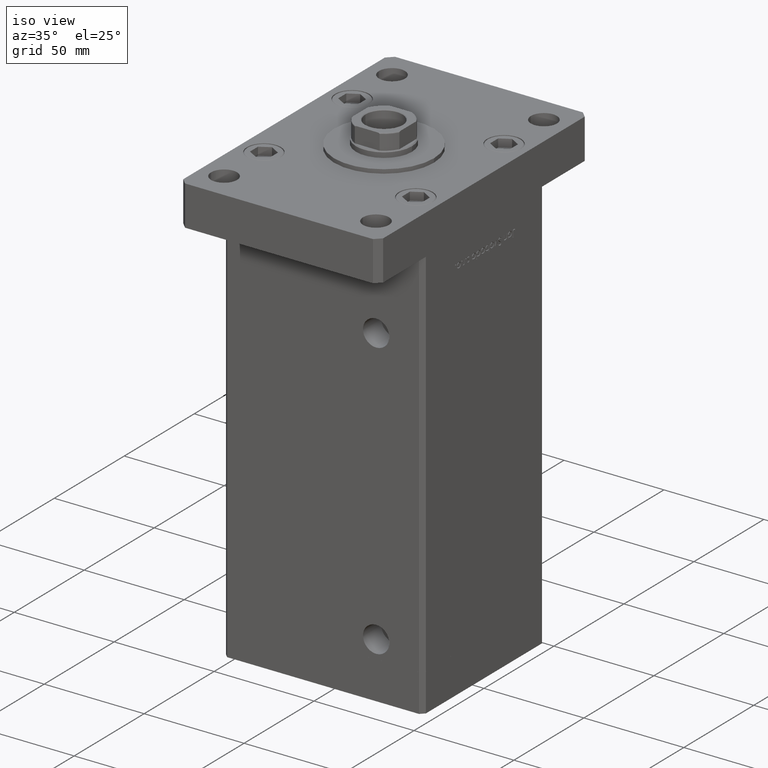
[diagram: clean part render]
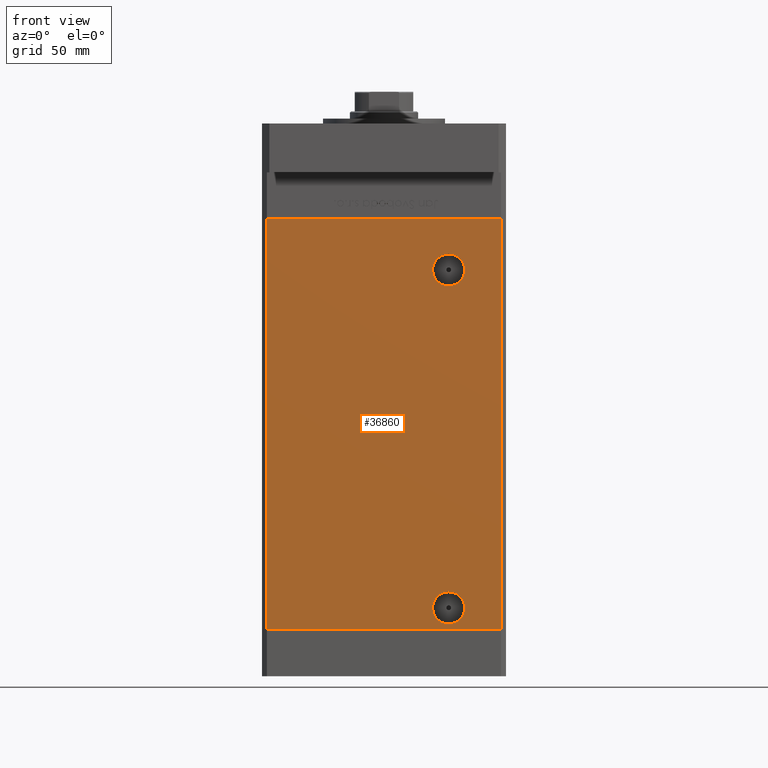
[diagram: tour spotlight — one face highlighted and labeled with its STEP entity id]
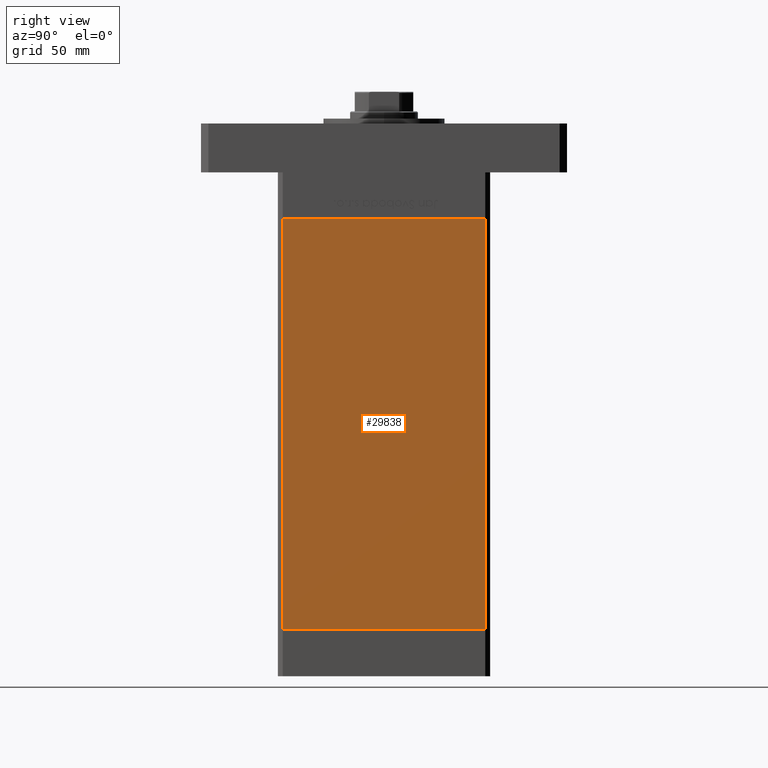
[diagram: tour spotlight — one face highlighted and labeled with its STEP entity id]
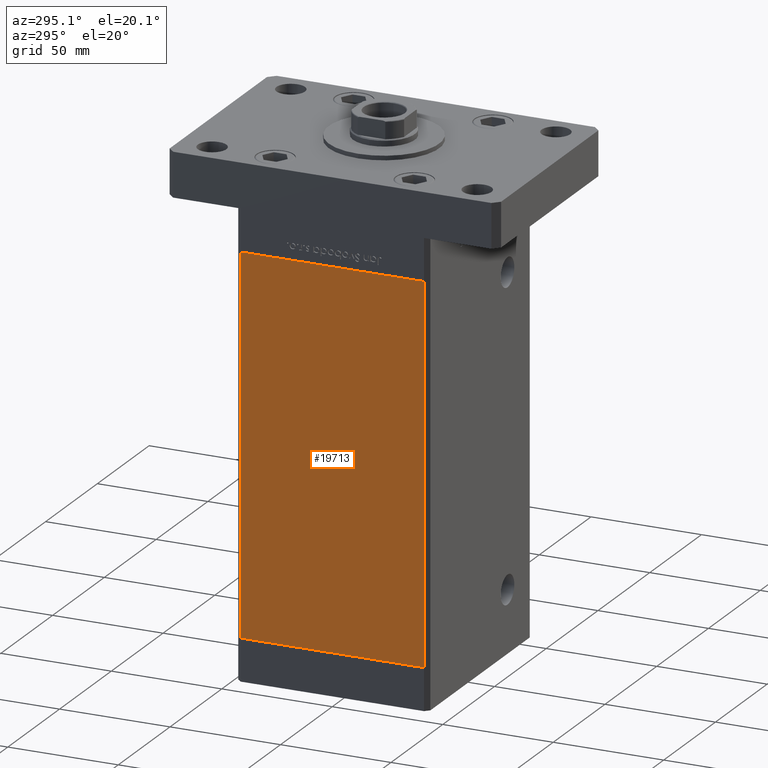
[diagram: tour spotlight — one face highlighted and labeled with its STEP entity id]
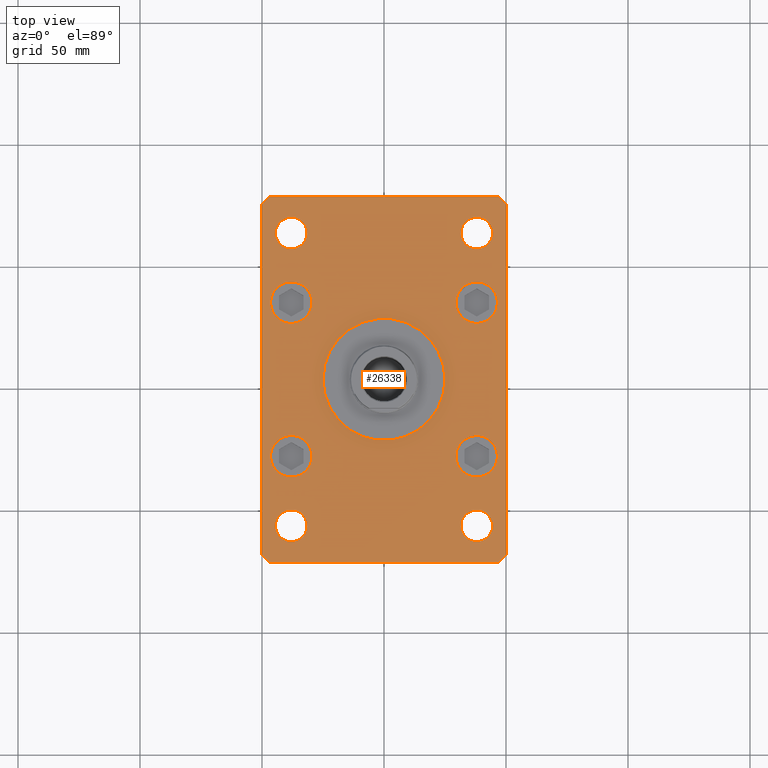
[diagram: tour spotlight — one face highlighted and labeled with its STEP entity id]
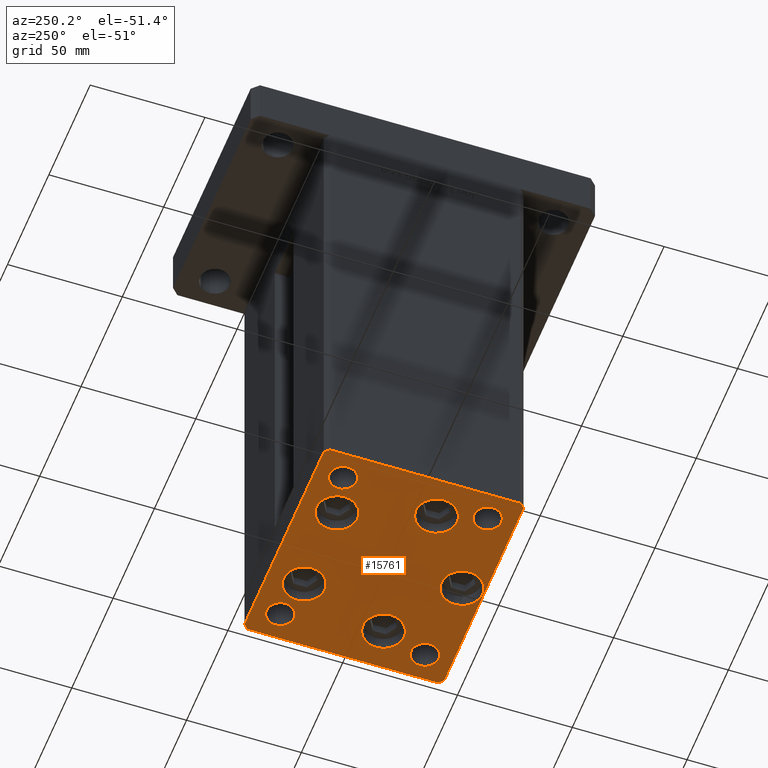
[diagram: tour spotlight — one face highlighted and labeled with its STEP entity id]
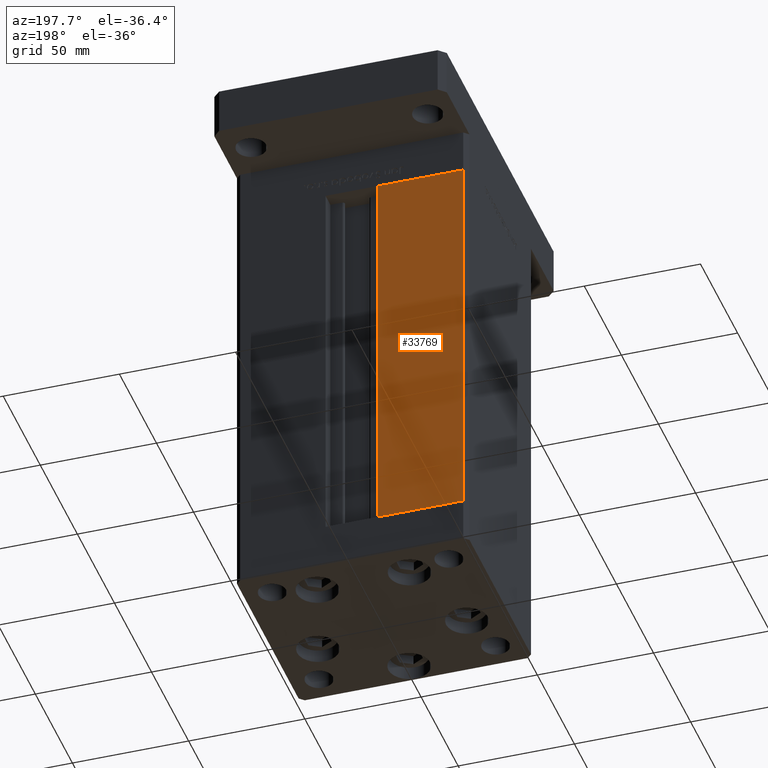
[diagram: tour spotlight — one face highlighted and labeled with its STEP entity id]
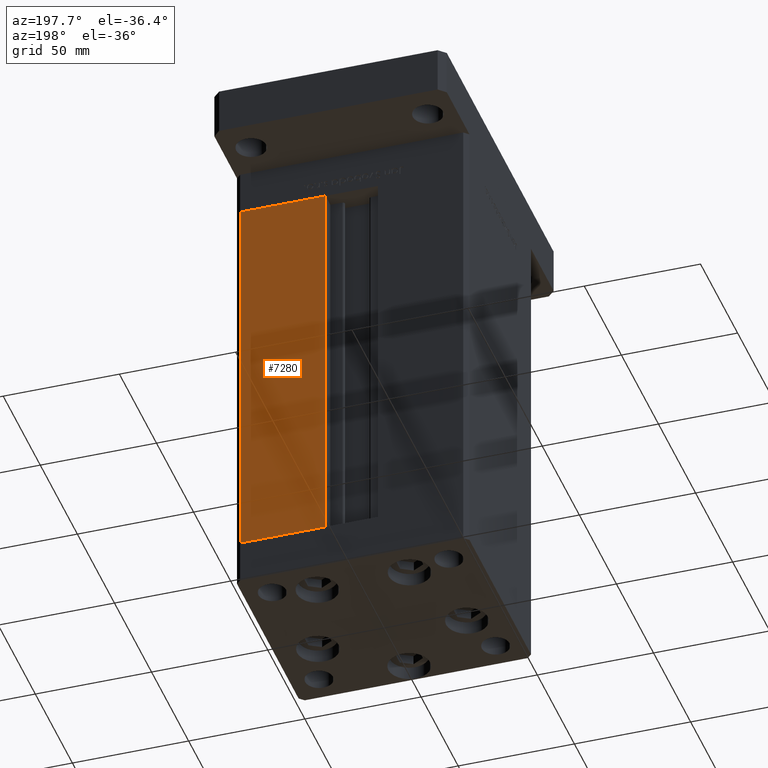
[diagram: tour spotlight — one face highlighted and labeled with its STEP entity id]
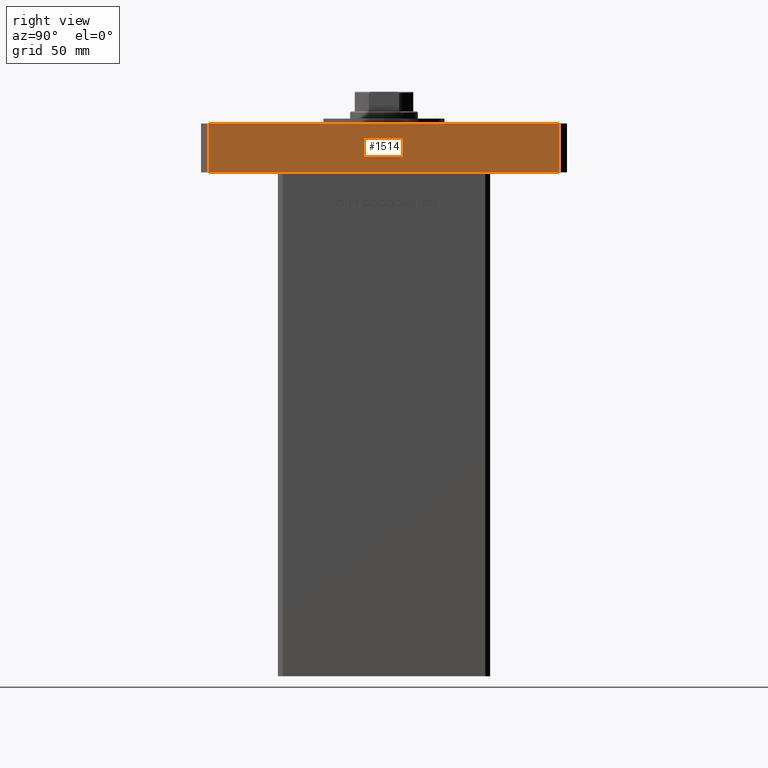
[diagram: tour spotlight — one face highlighted and labeled with its STEP entity id]
A machine part: a face-by-face anatomy tour. The part has 1311 B-rep faces; the first image is the clean iso view, then the 8 largest visible faces are spotlighted one at a time (largest first), each with its STEP entity span.

Face 1 — front view, entity #36860. In plain terms, the highlighted planar face has unit normal (0, 1, 0).
Definition (entity closure, byte-faithful):
#753 = EDGE_LOOP ( 'NONE', ( #31135, #3601 ) ) ;
#1077 = CIRCLE ( 'NONE', #26347, 6.579999999999994742 ) ;
#3338 = CARTESIAN_POINT ( 'NONE',  ( -47.99999999999998579, -43.50000000000000000, 0.000000000000000000 ) ) ;
#3601 = ORIENTED_EDGE ( 'NONE', *, *, #22588, .F. ) ;
#4968 = LINE ( 'NONE', #43129, #41394 ) ;
#6238 = CIRCLE ( 'NONE', #16678, 6.580000000000002736 ) ;
#6407 = ORIENTED_EDGE ( 'NONE', *, *, #44019, .T. ) ;
#7726 = ORIENTED_EDGE ( 'NONE', *, *, #19529, .F. ) ;
#8110 = VERTEX_POINT ( 'NONE', #16490 ) ;
#8211 = VECTOR ( 'NONE', #28582, 1000.000000000000000 ) ;
#8539 = ORIENTED_EDGE ( 'NONE', *, *, #9728, .T. ) ;
#9698 = CIRCLE ( 'NONE', #15828, 6.579999999999994742 ) ;
#9728 = EDGE_CURVE ( 'NONE', #8110, #22915, #40913, .T. ) ;
#9855 = LINE ( 'NONE', #31571, #10594 ) ;
#10500 = VERTEX_POINT ( 'NONE', #52315 ) ;
#10594 = VECTOR ( 'NONE', #27483, 1000.000000000000000 ) ;
#11575 = VERTEX_POINT ( 'NONE', #18071 ) ;
#12882 = EDGE_LOOP ( 'NONE', ( #6407, #31812, #7726, #35282 ) ) ;
#13019 = CARTESIAN_POINT ( 'NONE',  ( 47.99999999999998579, -43.50000000000000000, 168.5000000000000000 ) ) ;
#13289 = EDGE_CURVE ( 'NONE', #22915, #8110, #6238, .T. ) ;
#13993 = EDGE_CURVE ( 'NONE', #10500, #43801, #9698, .T. ) ;
#15828 = AXIS2_PLACEMENT_3D ( 'NONE', #21349, #41505, #21086 ) ;
#16490 = CARTESIAN_POINT ( 'NONE',  ( 26.49999999999997158, -43.50000000000000000, 140.9200000000000159 ) ) ;
#16678 = AXIS2_PLACEMENT_3D ( 'NONE', #27193, #27729, #32090 ) ;
#17218 = CARTESIAN_POINT ( 'NONE',  ( -47.99999999999998579, -43.50000000000000000, 0.000000000000000000 ) ) ;
#18071 = CARTESIAN_POINT ( 'NONE',  ( 47.99999999999998579, -43.50000000000000000, 0.000000000000000000 ) ) ;
#18811 = CARTESIAN_POINT ( 'NONE',  ( -47.99999999999998579, -43.50000000000000000, 168.5000000000000000 ) ) ;
#19089 = CARTESIAN_POINT ( 'NONE',  ( 47.99999999999998579, -43.50000000000000000, 168.5000000000000000 ) ) ;
#19529 = EDGE_CURVE ( 'NONE', #44684, #38501, #9855, .T. ) ;
#20940 = DIRECTION ( 'NONE',  ( -0.000000000000000000, 1.000000000000000000, -0.000000000000000000 ) ) ;
#21086 = DIRECTION ( 'NONE',  ( 0.000000000000000000, 0.000000000000000000, -1.000000000000000000 ) ) ;
#21349 = CARTESIAN_POINT ( 'NONE',  ( 26.49999999999998934, -43.50000000000000000, 9.000000000000007105 ) ) ;
#22030 = VERTEX_POINT ( 'NONE', #3338 ) ;
#22588 = EDGE_CURVE ( 'NONE', #43801, #10500, #1077, .T. ) ;
#22915 = VERTEX_POINT ( 'NONE', #35203 ) ;
#23994 = LINE ( 'NONE', #19089, #8211 ) ;
#26347 = AXIS2_PLACEMENT_3D ( 'NONE', #34728, #33921, #38005 ) ;
#27193 = CARTESIAN_POINT ( 'NONE',  ( 26.49999999999997158, -43.50000000000000000, 147.5000000000000284 ) ) ;
#27242 = DIRECTION ( 'NONE',  ( 0.000000000000000000, 1.000000000000000000, 0.000000000000000000 ) ) ;
#27483 = DIRECTION ( 'NONE',  ( 1.000000000000000000, 0.000000000000000000, 0.000000000000000000 ) ) ;
#27729 = DIRECTION ( 'NONE',  ( -0.000000000000000000, 1.000000000000000000, -0.000000000000000000 ) ) ;
#28582 = DIRECTION ( 'NONE',  ( -0.000000000000000000, -0.000000000000000000, -1.000000000000000000 ) ) ;
#31060 = FACE_BOUND ( 'NONE', #753, .T. ) ;
#31135 = ORIENTED_EDGE ( 'NONE', *, *, #13993, .F. ) ;
#31571 = CARTESIAN_POINT ( 'NONE',  ( -47.99999999999998579, -43.50000000000000000, 168.5000000000000000 ) ) ;
#31603 = DIRECTION ( 'NONE',  ( 0.000000000000000000, -0.000000000000000000, 1.000000000000000000 ) ) ;
#31812 = ORIENTED_EDGE ( 'NONE', *, *, #32320, .F. ) ;
#32090 = DIRECTION ( 'NONE',  ( 0.000000000000000000, 0.000000000000000000, -1.000000000000000000 ) ) ;
#32233 = AXIS2_PLACEMENT_3D ( 'NONE', #38062, #20940, #47069 ) ;
#32320 = EDGE_CURVE ( 'NONE', #38501, #11575, #23994, .T. ) ;
#33827 = DIRECTION ( 'NONE',  ( 1.000000000000000000, 0.000000000000000000, 0.000000000000000000 ) ) ;
#33921 = DIRECTION ( 'NONE',  ( 0.000000000000000000, -1.000000000000000000, 0.000000000000000000 ) ) ;
#34728 = CARTESIAN_POINT ( 'NONE',  ( 26.49999999999998934, -43.50000000000000000, 9.000000000000007105 ) ) ;
#35203 = CARTESIAN_POINT ( 'NONE',  ( 26.49999999999997158, -43.50000000000000000, 154.0800000000000125 ) ) ;
#35282 = ORIENTED_EDGE ( 'NONE', *, *, #35447, .T. ) ;
#35447 = EDGE_CURVE ( 'NONE', #44684, #22030, #4968, .T. ) ;
#35682 = ORIENTED_EDGE ( 'NONE', *, *, #13289, .T. ) ;
#36860 = ADVANCED_FACE ( 'NONE', ( #31060, #43342, #44144 ), #52872, .F. ) ;
#37342 = EDGE_LOOP ( 'NONE', ( #8539, #35682 ) ) ;
#38005 = DIRECTION ( 'NONE',  ( 0.000000000000000000, 0.000000000000000000, -1.000000000000000000 ) ) ;
#38062 = CARTESIAN_POINT ( 'NONE',  ( 26.49999999999997158, -43.50000000000000000, 147.5000000000000284 ) ) ;
#38501 = VERTEX_POINT ( 'NONE', #13019 ) ;
#40913 = CIRCLE ( 'NONE', #32233, 6.580000000000002736 ) ;
#41394 = VECTOR ( 'NONE', #51303, 1000.000000000000000 ) ;
#41505 = DIRECTION ( 'NONE',  ( 0.000000000000000000, -1.000000000000000000, 0.000000000000000000 ) ) ;
#42895 = CARTESIAN_POINT ( 'NONE',  ( 26.49999999999998934, -43.50000000000000000, 15.58000000000000362 ) ) ;
#42964 = CARTESIAN_POINT ( 'NONE',  ( -47.99999999999998579, -43.50000000000000000, 168.5000000000000000 ) ) ;
#43129 = CARTESIAN_POINT ( 'NONE',  ( -47.99999999999998579, -43.50000000000000000, 168.5000000000000000 ) ) ;
#43342 = FACE_OUTER_BOUND ( 'NONE', #12882, .T. ) ;
#43801 = VERTEX_POINT ( 'NONE', #42895 ) ;
#44019 = EDGE_CURVE ( 'NONE', #22030, #11575, #50195, .T. ) ;
#44144 = FACE_BOUND ( 'NONE', #37342, .T. ) ;
#44684 = VERTEX_POINT ( 'NONE', #42964 ) ;
#47069 = DIRECTION ( 'NONE',  ( 0.000000000000000000, 0.000000000000000000, -1.000000000000000000 ) ) ;
#48403 = AXIS2_PLACEMENT_3D ( 'NONE', #18811, #27242, #31603 ) ;
#50195 = LINE ( 'NONE', #17218, #50338 ) ;
#50338 = VECTOR ( 'NONE', #33827, 1000.000000000000000 ) ;
#51303 = DIRECTION ( 'NONE',  ( -0.000000000000000000, -0.000000000000000000, -1.000000000000000000 ) ) ;
#52315 = CARTESIAN_POINT ( 'NONE',  ( 26.49999999999998934, -43.50000000000000000, 2.420000000000013252 ) ) ;
#52872 = PLANE ( 'NONE',  #48403 ) ;

Face 2 — right view, entity #29838. In plain terms, the highlighted planar face has unit normal (1, -0, 0).
Definition (entity closure, byte-faithful):
#1303 = VECTOR ( 'NONE', #11545, 1000.000000000000000 ) ;
#1462 = CARTESIAN_POINT ( 'NONE',  ( 50.00000000000001421, 41.49999999999999289, 0.000000000000000000 ) ) ;
#2307 = FACE_OUTER_BOUND ( 'NONE', #39232, .T. ) ;
#2980 = VECTOR ( 'NONE', #18118, 1000.000000000000000 ) ;
#5356 = DIRECTION ( 'NONE',  ( 1.000000000000000000, -3.344045254895050973E-16, 0.000000000000000000 ) ) ;
#5613 = VERTEX_POINT ( 'NONE', #29025 ) ;
#6167 = PLANE ( 'NONE',  #49072 ) ;
#10978 = ORIENTED_EDGE ( 'NONE', *, *, #34642, .T. ) ;
#11545 = DIRECTION ( 'NONE',  ( -3.344045254895050973E-16, -1.000000000000000000, 0.000000000000000000 ) ) ;
#18118 = DIRECTION ( 'NONE',  ( -3.344045254895050973E-16, -1.000000000000000000, 0.000000000000000000 ) ) ;
#18625 = LINE ( 'NONE', #43163, #29429 ) ;
#20099 = VERTEX_POINT ( 'NONE', #29017 ) ;
#20179 = LINE ( 'NONE', #49592, #48257 ) ;
#22448 = DIRECTION ( 'NONE',  ( -0.000000000000000000, -0.000000000000000000, -1.000000000000000000 ) ) ;
#22733 = VERTEX_POINT ( 'NONE', #25693 ) ;
#22801 = DIRECTION ( 'NONE',  ( 3.344045254895050973E-16, 1.000000000000000000, 0.000000000000000000 ) ) ;
#24004 = ORIENTED_EDGE ( 'NONE', *, *, #43019, .F. ) ;
#25693 = CARTESIAN_POINT ( 'NONE',  ( 50.00000000000001421, 41.49999999999999289, 168.5000000000000000 ) ) ;
#26337 = CARTESIAN_POINT ( 'NONE',  ( 50.00000000000001421, 41.49999999999999289, 168.5000000000000000 ) ) ;
#26407 = EDGE_CURVE ( 'NONE', #20099, #36177, #20179, .T. ) ;
#29017 = CARTESIAN_POINT ( 'NONE',  ( 49.99999999999998579, -41.49999999999999289, 168.5000000000000000 ) ) ;
#29025 = CARTESIAN_POINT ( 'NONE',  ( 50.00000000000001421, 41.49999999999999289, 0.000000000000000000 ) ) ;
#29429 = VECTOR ( 'NONE', #22448, 1000.000000000000000 ) ;
#29838 = ADVANCED_FACE ( 'NONE', ( #2307 ), #6167, .T. ) ;
#30910 = LINE ( 'NONE', #1462, #2980 ) ;
#31759 = EDGE_CURVE ( 'NONE', #5613, #36177, #30910, .T. ) ;
#32256 = CARTESIAN_POINT ( 'NONE',  ( 50.00000000000001421, 41.49999999999999289, 168.5000000000000000 ) ) ;
#32412 = ORIENTED_EDGE ( 'NONE', *, *, #26407, .T. ) ;
#33342 = ORIENTED_EDGE ( 'NONE', *, *, #31759, .F. ) ;
#34642 = EDGE_CURVE ( 'NONE', #22733, #20099, #36335, .T. ) ;
#36177 = VERTEX_POINT ( 'NONE', #42198 ) ;
#36335 = LINE ( 'NONE', #32256, #1303 ) ;
#39232 = EDGE_LOOP ( 'NONE', ( #33342, #24004, #10978, #32412 ) ) ;
#42198 = CARTESIAN_POINT ( 'NONE',  ( 49.99999999999998579, -41.49999999999999289, 0.000000000000000000 ) ) ;
#43019 = EDGE_CURVE ( 'NONE', #22733, #5613, #18625, .T. ) ;
#43163 = CARTESIAN_POINT ( 'NONE',  ( 50.00000000000001421, 41.49999999999999289, 168.5000000000000000 ) ) ;
#44962 = DIRECTION ( 'NONE',  ( -0.000000000000000000, -0.000000000000000000, -1.000000000000000000 ) ) ;
#48257 = VECTOR ( 'NONE', #44962, 1000.000000000000000 ) ;
#49072 = AXIS2_PLACEMENT_3D ( 'NONE', #26337, #5356, #22801 ) ;
#49592 = CARTESIAN_POINT ( 'NONE',  ( 49.99999999999998579, -41.49999999999999289, 168.5000000000000000 ) ) ;

Face 3 — auxiliary view, entity #19713. In plain terms, the highlighted planar face has unit normal (1, 0, 0).
Definition (entity closure, byte-faithful):
#2333 = LINE ( 'NONE', #43260, #5205 ) ;
#2950 = CARTESIAN_POINT ( 'NONE',  ( -50.00000000000001421, 41.49999999999999289, 168.5000000000000000 ) ) ;
#2984 = VECTOR ( 'NONE', #32128, 1000.000000000000000 ) ;
#3320 = ORIENTED_EDGE ( 'NONE', *, *, #38079, .T. ) ;
#3475 = DIRECTION ( 'NONE',  ( -3.344045254895050973E-16, 1.000000000000000000, 0.000000000000000000 ) ) ;
#5205 = VECTOR ( 'NONE', #30980, 1000.000000000000000 ) ;
#7123 = DIRECTION ( 'NONE',  ( 3.344045254895050973E-16, -1.000000000000000000, 0.000000000000000000 ) ) ;
#7508 = EDGE_LOOP ( 'NONE', ( #3320, #11141, #52027, #29856 ) ) ;
#7858 = LINE ( 'NONE', #2950, #2984 ) ;
#8652 = CARTESIAN_POINT ( 'NONE',  ( -49.99999999999998579, -41.49999999999999289, 0.000000000000000000 ) ) ;
#9912 = CARTESIAN_POINT ( 'NONE',  ( -50.00000000000001421, 41.49999999999999289, 168.5000000000000000 ) ) ;
#10368 = CARTESIAN_POINT ( 'NONE',  ( -50.00000000000001421, 41.49999999999999289, 0.000000000000000000 ) ) ;
#11141 = ORIENTED_EDGE ( 'NONE', *, *, #51328, .F. ) ;
#11671 = CARTESIAN_POINT ( 'NONE',  ( -50.00000000000001421, 41.49999999999999289, 168.5000000000000000 ) ) ;
#15776 = PLANE ( 'NONE',  #28016 ) ;
#19713 = ADVANCED_FACE ( 'NONE', ( #24215 ), #15776, .F. ) ;
#21908 = CARTESIAN_POINT ( 'NONE',  ( -50.00000000000001421, 41.49999999999999289, 168.5000000000000000 ) ) ;
#24215 = FACE_OUTER_BOUND ( 'NONE', #7508, .T. ) ;
#25719 = LINE ( 'NONE', #21908, #40437 ) ;
#26684 = VECTOR ( 'NONE', #7123, 1000.000000000000000 ) ;
#28016 = AXIS2_PLACEMENT_3D ( 'NONE', #11671, #28281, #3475 ) ;
#28222 = EDGE_CURVE ( 'NONE', #43858, #49906, #7858, .T. ) ;
#28281 = DIRECTION ( 'NONE',  ( 1.000000000000000000, 3.344045254895050973E-16, -0.000000000000000000 ) ) ;
#29856 = ORIENTED_EDGE ( 'NONE', *, *, #31888, .T. ) ;
#30749 = CARTESIAN_POINT ( 'NONE',  ( -49.99999999999998579, -41.49999999999999289, 168.5000000000000000 ) ) ;
#30980 = DIRECTION ( 'NONE',  ( -0.000000000000000000, -0.000000000000000000, -1.000000000000000000 ) ) ;
#31357 = VERTEX_POINT ( 'NONE', #8652 ) ;
#31888 = EDGE_CURVE ( 'NONE', #43858, #49540, #25719, .T. ) ;
#32128 = DIRECTION ( 'NONE',  ( 3.344045254895050973E-16, -1.000000000000000000, 0.000000000000000000 ) ) ;
#34419 = DIRECTION ( 'NONE',  ( -0.000000000000000000, -0.000000000000000000, -1.000000000000000000 ) ) ;
#38079 = EDGE_CURVE ( 'NONE', #49540, #31357, #48549, .T. ) ;
#40437 = VECTOR ( 'NONE', #34419, 1000.000000000000000 ) ;
#43260 = CARTESIAN_POINT ( 'NONE',  ( -49.99999999999998579, -41.49999999999999289, 168.5000000000000000 ) ) ;
#43858 = VERTEX_POINT ( 'NONE', #9912 ) ;
#44466 = CARTESIAN_POINT ( 'NONE',  ( -50.00000000000001421, 41.49999999999999289, 0.000000000000000000 ) ) ;
#48549 = LINE ( 'NONE', #44466, #26684 ) ;
#49540 = VERTEX_POINT ( 'NONE', #10368 ) ;
#49906 = VERTEX_POINT ( 'NONE', #30749 ) ;
#51328 = EDGE_CURVE ( 'NONE', #49906, #31357, #2333, .T. ) ;
#52027 = ORIENTED_EDGE ( 'NONE', *, *, #28222, .F. ) ;

Face 4 — top view, entity #26338. In plain terms, the highlighted planar face has unit normal (0, 0, 1).
Definition (entity closure, byte-faithful):
#829 = AXIS2_PLACEMENT_3D ( 'NONE', #3820, #20482, #8732 ) ;
#1128 = DIRECTION ( 'NONE',  ( 1.000000000000000000, 0.000000000000000000, 0.000000000000000000 ) ) ;
#1185 = AXIS2_PLACEMENT_3D ( 'NONE', #38577, #16339, #9695 ) ;
#1493 = CARTESIAN_POINT ( 'NONE',  ( 25.00000000000000000, 3.061616997868383043E-15, 20.00000000000000000 ) ) ;
#1528 = EDGE_LOOP ( 'NONE', ( #16099, #18032 ) ) ;
#1908 = FACE_BOUND ( 'NONE', #1528, .T. ) ;
#2024 = EDGE_LOOP ( 'NONE', ( #50859, #15256 ) ) ;
#2171 = FACE_BOUND ( 'NONE', #50592, .T. ) ;
#2260 = DIRECTION ( 'NONE',  ( 0.000000000000000000, 0.000000000000000000, 1.000000000000000000 ) ) ;
#2393 = DIRECTION ( 'NONE',  ( 1.000000000000000000, 0.000000000000000000, 0.000000000000000000 ) ) ;
#2567 = AXIS2_PLACEMENT_3D ( 'NONE', #30773, #31036, #2393 ) ;
#2572 = CARTESIAN_POINT ( 'NONE',  ( -47.00000000000000000, -75.00000000000000000, 20.00000000000000000 ) ) ;
#2878 = DIRECTION ( 'NONE',  ( 0.000000000000000000, 0.000000000000000000, 1.000000000000000000 ) ) ;
#3253 = EDGE_CURVE ( 'NONE', #8235, #28607, #41682, .T. ) ;
#3686 = CARTESIAN_POINT ( 'NONE',  ( 44.49999999999997868, -60.00000000000000711, 20.00000000000000000 ) ) ;
#3749 = CARTESIAN_POINT ( 'NONE',  ( 29.49999999999999645, -31.49999999999999289, 20.00000000000000000 ) ) ;
#3820 = CARTESIAN_POINT ( 'NONE',  ( 0.000000000000000000, 0.000000000000000000, 20.00000000000000000 ) ) ;
#4001 = VERTEX_POINT ( 'NONE', #6223 ) ;
#4029 = CARTESIAN_POINT ( 'NONE',  ( 47.00000000000002842, 75.00000000000002842, 20.00000000000000000 ) ) ;
#4849 = LINE ( 'NONE', #38364, #7404 ) ;
#5036 = EDGE_CURVE ( 'NONE', #53606, #20026, #52202, .T. ) ;
#5150 = VERTEX_POINT ( 'NONE', #3749 ) ;
#5373 = EDGE_CURVE ( 'NONE', #22619, #22499, #34798, .T. ) ;
#5567 = DIRECTION ( 'NONE',  ( 1.000000000000000000, 0.000000000000000000, 0.000000000000000000 ) ) ;
#5723 = CIRCLE ( 'NONE', #36179, 6.499999999999999112 ) ;
#6223 = CARTESIAN_POINT ( 'NONE',  ( -47.00000000000000000, -75.00000000000000000, 20.00000000000000000 ) ) ;
#6318 = VECTOR ( 'NONE', #17271, 1000.000000000000000 ) ;
#6556 = FACE_BOUND ( 'NONE', #2024, .T. ) ;
#6666 = EDGE_CURVE ( 'NONE', #19616, #36050, #32109, .T. ) ;
#6728 = CIRCLE ( 'NONE', #13688, 8.500000000000000000 ) ;
#6959 = LINE ( 'NONE', #2572, #35512 ) ;
#6963 = CIRCLE ( 'NONE', #829, 25.00000000000000000 ) ;
#7232 = DIRECTION ( 'NONE',  ( -0.7071067811865426878, 0.7071067811865524577, 0.000000000000000000 ) ) ;
#7328 = EDGE_CURVE ( 'NONE', #40522, #29049, #34758, .T. ) ;
#7404 = VECTOR ( 'NONE', #37825, 1000.000000000000000 ) ;
#7964 = ORIENTED_EDGE ( 'NONE', *, *, #20681, .F. ) ;
#7995 = EDGE_CURVE ( 'NONE', #29579, #29109, #52217, .T. ) ;
#8004 = DIRECTION ( 'NONE',  ( 0.000000000000000000, 0.000000000000000000, 1.000000000000000000 ) ) ;
#8087 = ORIENTED_EDGE ( 'NONE', *, *, #29157, .T. ) ;
#8235 = VERTEX_POINT ( 'NONE', #18095 ) ;
#8732 = DIRECTION ( 'NONE',  ( 1.000000000000000000, 0.000000000000000000, 0.000000000000000000 ) ) ;
#8940 = CARTESIAN_POINT ( 'NONE',  ( 46.49999999999998579, 31.49999999999999289, 20.00000000000000000 ) ) ;
#9142 = ORIENTED_EDGE ( 'NONE', *, *, #3253, .F. ) ;
#9185 = LINE ( 'NONE', #38602, #35694 ) ;
#9398 = LINE ( 'NONE', #9676, #44569 ) ;
#9658 = CARTESIAN_POINT ( 'NONE',  ( 31.49999999999997868, -60.00000000000000711, 20.00000000000000000 ) ) ;
#9676 = CARTESIAN_POINT ( 'NONE',  ( 47.00000000000001421, -74.99999999999988631, 20.00000000000000000 ) ) ;
#9695 = DIRECTION ( 'NONE',  ( 1.000000000000000000, 0.000000000000000000, 0.000000000000000000 ) ) ;
#9736 = CIRCLE ( 'NONE', #40212, 8.499999999999992895 ) ;
#9770 = EDGE_CURVE ( 'NONE', #35571, #10220, #9185, .T. ) ;
#10220 = VERTEX_POINT ( 'NONE', #19676 ) ;
#10637 = DIRECTION ( 'NONE',  ( 1.000000000000000000, 0.000000000000000000, 0.000000000000000000 ) ) ;
#10645 = DIRECTION ( 'NONE',  ( 0.000000000000000000, 0.000000000000000000, 1.000000000000000000 ) ) ;
#10699 = CARTESIAN_POINT ( 'NONE',  ( 29.49999999999999645, 31.49999999999999289, 20.00000000000000000 ) ) ;
#10955 = CARTESIAN_POINT ( 'NONE',  ( -50.00000000000001421, 72.00000000000000000, 20.00000000000000000 ) ) ;
#11076 = EDGE_CURVE ( 'NONE', #36050, #19616, #21824, .T. ) ;
#11077 = CARTESIAN_POINT ( 'NONE',  ( -38.00000000000000711, -31.50000000000000000, 20.00000000000000000 ) ) ;
#12089 = CARTESIAN_POINT ( 'NONE',  ( -38.00000000000000711, 31.50000000000000000, 20.00000000000000000 ) ) ;
#12489 = CIRCLE ( 'NONE', #1185, 6.499999999999999112 ) ;
#12809 = DIRECTION ( 'NONE',  ( 1.000000000000000000, 0.000000000000000000, 0.000000000000000000 ) ) ;
#12983 = EDGE_CURVE ( 'NONE', #5150, #47438, #20998, .T. ) ;
#13400 = EDGE_LOOP ( 'NONE', ( #7964, #53382 ) ) ;
#13554 = DIRECTION ( 'NONE',  ( 0.000000000000000000, 0.000000000000000000, 1.000000000000000000 ) ) ;
#13667 = CARTESIAN_POINT ( 'NONE',  ( -47.00000000000002842, 75.00000000000000000, 20.00000000000000000 ) ) ;
#13688 = AXIS2_PLACEMENT_3D ( 'NONE', #27821, #35455, #53180 ) ;
#13959 = DIRECTION ( 'NONE',  ( 0.000000000000000000, 0.000000000000000000, 1.000000000000000000 ) ) ;
#14113 = ORIENTED_EDGE ( 'NONE', *, *, #35921, .F. ) ;
#14596 = EDGE_CURVE ( 'NONE', #28244, #19010, #9398, .T. ) ;
#14761 = AXIS2_PLACEMENT_3D ( 'NONE', #38478, #13959, #1128 ) ;
#15208 = DIRECTION ( 'NONE',  ( 0.7071067811865474617, -0.7071067811865474617, 0.000000000000000000 ) ) ;
#15256 = ORIENTED_EDGE ( 'NONE', *, *, #6666, .F. ) ;
#15819 = EDGE_CURVE ( 'NONE', #29109, #40131, #50245, .T. ) ;
#16099 = ORIENTED_EDGE ( 'NONE', *, *, #32205, .F. ) ;
#16339 = DIRECTION ( 'NONE',  ( 0.000000000000000000, 0.000000000000000000, 1.000000000000000000 ) ) ;
#16524 = CARTESIAN_POINT ( 'NONE',  ( -44.49999999999999289, 59.99999999999999289, 20.00000000000000000 ) ) ;
#16602 = ORIENTED_EDGE ( 'NONE', *, *, #7995, .T. ) ;
#16691 = EDGE_LOOP ( 'NONE', ( #43266, #9142 ) ) ;
#17156 = CARTESIAN_POINT ( 'NONE',  ( 50.00000000000000000, 72.00000000000001421, 20.00000000000000000 ) ) ;
#17271 = DIRECTION ( 'NONE',  ( -1.000000000000000000, -2.952720810173287140E-16, 0.000000000000000000 ) ) ;
#17335 = VERTEX_POINT ( 'NONE', #42776 ) ;
#17702 = ORIENTED_EDGE ( 'NONE', *, *, #42818, .T. ) ;
#18032 = ORIENTED_EDGE ( 'NONE', *, *, #20252, .F. ) ;
#18095 = CARTESIAN_POINT ( 'NONE',  ( -31.49999999999999289, 59.99999999999999289, 20.00000000000000000 ) ) ;
#18537 = EDGE_CURVE ( 'NONE', #17335, #50062, #47386, .T. ) ;
#18827 = FACE_BOUND ( 'NONE', #23209, .T. ) ;
#19010 = VERTEX_POINT ( 'NONE', #35315 ) ;
#19093 = AXIS2_PLACEMENT_3D ( 'NONE', #51660, #48110, #30393 ) ;
#19126 = ORIENTED_EDGE ( 'NONE', *, *, #51020, .F. ) ;
#19178 = ORIENTED_EDGE ( 'NONE', *, *, #39740, .F. ) ;
#19616 = VERTEX_POINT ( 'NONE', #49275 ) ;
#19676 = CARTESIAN_POINT ( 'NONE',  ( -49.99999999999998579, -72.00000000000001421, 20.00000000000000000 ) ) ;
#20026 = VERTEX_POINT ( 'NONE', #33112 ) ;
#20252 = EDGE_CURVE ( 'NONE', #21579, #25774, #26274, .T. ) ;
#20439 = AXIS2_PLACEMENT_3D ( 'NONE', #11077, #2878, #47419 ) ;
#20482 = DIRECTION ( 'NONE',  ( 0.000000000000000000, 0.000000000000000000, 1.000000000000000000 ) ) ;
#20678 = DIRECTION ( 'NONE',  ( 0.000000000000000000, 0.000000000000000000, 1.000000000000000000 ) ) ;
#20681 = EDGE_CURVE ( 'NONE', #52681, #36146, #9736, .T. ) ;
#20968 = LINE ( 'NONE', #36769, #42114 ) ;
#20998 = CIRCLE ( 'NONE', #34912, 8.499999999999992895 ) ;
#21467 = DIRECTION ( 'NONE',  ( 1.927470528863118802E-16, -1.000000000000000000, 0.000000000000000000 ) ) ;
#21579 = VERTEX_POINT ( 'NONE', #33696 ) ;
#21636 = CARTESIAN_POINT ( 'NONE',  ( 47.00000000000002842, 75.00000000000002842, 20.00000000000000000 ) ) ;
#21758 = AXIS2_PLACEMENT_3D ( 'NONE', #36276, #23228, #52921 ) ;
#21824 = CIRCLE ( 'NONE', #47921, 8.500000000000000000 ) ;
#21923 = CARTESIAN_POINT ( 'NONE',  ( -46.50000000000000711, -31.50000000000000000, 20.00000000000000000 ) ) ;
#22015 = CARTESIAN_POINT ( 'NONE',  ( 37.99999999999997868, -60.00000000000000711, 20.00000000000000000 ) ) ;
#22157 = AXIS2_PLACEMENT_3D ( 'NONE', #51541, #10645, #52353 ) ;
#22499 = VERTEX_POINT ( 'NONE', #3686 ) ;
#22619 = VERTEX_POINT ( 'NONE', #9658 ) ;
#22923 = CARTESIAN_POINT ( 'NONE',  ( 37.99999999999999289, -31.49999999999999289, 20.00000000000000000 ) ) ;
#22944 = ORIENTED_EDGE ( 'NONE', *, *, #24554, .T. ) ;
#23175 = CARTESIAN_POINT ( 'NONE',  ( 31.50000000000000000, 59.99999999999998579, 20.00000000000000000 ) ) ;
#23209 = EDGE_LOOP ( 'NONE', ( #14113, #48760 ) ) ;
#23228 = DIRECTION ( 'NONE',  ( 0.000000000000000000, 0.000000000000000000, 1.000000000000000000 ) ) ;
#24401 = AXIS2_PLACEMENT_3D ( 'NONE', #22015, #13554, #35332 ) ;
#24554 = EDGE_CURVE ( 'NONE', #40131, #35571, #20968, .T. ) ;
#25733 = EDGE_CURVE ( 'NONE', #28607, #8235, #12489, .T. ) ;
#25774 = VERTEX_POINT ( 'NONE', #34489 ) ;
#25846 = ORIENTED_EDGE ( 'NONE', *, *, #53733, .F. ) ;
#26110 = CARTESIAN_POINT ( 'NONE',  ( -46.50000000000000711, 31.50000000000000000, 20.00000000000000000 ) ) ;
#26274 = CIRCLE ( 'NONE', #46313, 6.499999999999999112 ) ;
#26318 = EDGE_LOOP ( 'NONE', ( #17702, #50148, #8087, #16602, #40532, #22944, #46909, #29899 ) ) ;
#26338 = ADVANCED_FACE ( 'NONE', ( #2171, #6556, #31621, #26997, #1908, #51810, #18827, #34911, #47991, #26465 ), #47715, .T. ) ;
#26397 = DIRECTION ( 'NONE',  ( 1.000000000000000000, 0.000000000000000000, 0.000000000000000000 ) ) ;
#26446 = DIRECTION ( 'NONE',  ( 1.000000000000000000, 0.000000000000000000, 0.000000000000000000 ) ) ;
#26465 = FACE_BOUND ( 'NONE', #40215, .T. ) ;
#26997 = FACE_BOUND ( 'NONE', #16691, .T. ) ;
#27017 = DIRECTION ( 'NONE',  ( 0.000000000000000000, 0.000000000000000000, 1.000000000000000000 ) ) ;
#27252 = DIRECTION ( 'NONE',  ( 0.000000000000000000, 0.000000000000000000, 1.000000000000000000 ) ) ;
#27546 = ORIENTED_EDGE ( 'NONE', *, *, #51254, .F. ) ;
#27821 = CARTESIAN_POINT ( 'NONE',  ( -38.00000000000000711, -31.50000000000000000, 20.00000000000000000 ) ) ;
#28244 = VERTEX_POINT ( 'NONE', #44930 ) ;
#28607 = VERTEX_POINT ( 'NONE', #16524 ) ;
#29049 = VERTEX_POINT ( 'NONE', #23175 ) ;
#29109 = VERTEX_POINT ( 'NONE', #4029 ) ;
#29157 = EDGE_CURVE ( 'NONE', #19010, #29579, #4849, .T. ) ;
#29579 = VERTEX_POINT ( 'NONE', #17156 ) ;
#29899 = ORIENTED_EDGE ( 'NONE', *, *, #53360, .T. ) ;
#30121 = EDGE_LOOP ( 'NONE', ( #19178, #48094 ) ) ;
#30216 = CIRCLE ( 'NONE', #48520, 8.499999999999992895 ) ;
#30383 = DIRECTION ( 'NONE',  ( 0.7071067811865459074, 0.7071067811865491270, 0.000000000000000000 ) ) ;
#30393 = DIRECTION ( 'NONE',  ( 1.000000000000000000, 0.000000000000000000, 0.000000000000000000 ) ) ;
#30555 = ORIENTED_EDGE ( 'NONE', *, *, #5373, .F. ) ;
#30773 = CARTESIAN_POINT ( 'NONE',  ( 0.000000000000000000, 0.000000000000000000, 20.00000000000000000 ) ) ;
#31036 = DIRECTION ( 'NONE',  ( 0.000000000000000000, 0.000000000000000000, 1.000000000000000000 ) ) ;
#31274 = CARTESIAN_POINT ( 'NONE',  ( -49.99999999999998579, -72.00000000000001421, 20.00000000000000000 ) ) ;
#31621 = FACE_BOUND ( 'NONE', #48171, .T. ) ;
#31753 = DIRECTION ( 'NONE',  ( 1.000000000000000000, 1.181088324069315250E-15, 0.000000000000000000 ) ) ;
#32109 = CIRCLE ( 'NONE', #37306, 8.500000000000000000 ) ;
#32180 = DIRECTION ( 'NONE',  ( 1.000000000000000000, 0.000000000000000000, 0.000000000000000000 ) ) ;
#32205 = EDGE_CURVE ( 'NONE', #25774, #21579, #36069, .T. ) ;
#33112 = CARTESIAN_POINT ( 'NONE',  ( -25.00000000000000000, 0.000000000000000000, 20.00000000000000000 ) ) ;
#33696 = CARTESIAN_POINT ( 'NONE',  ( -31.49999999999997868, -60.00000000000000711, 20.00000000000000000 ) ) ;
#33867 = DIRECTION ( 'NONE',  ( 1.000000000000000000, 0.000000000000000000, 0.000000000000000000 ) ) ;
#33889 = VECTOR ( 'NONE', #15208, 1000.000000000000114 ) ;
#34489 = CARTESIAN_POINT ( 'NONE',  ( -44.49999999999997868, -60.00000000000000711, 20.00000000000000000 ) ) ;
#34758 = CIRCLE ( 'NONE', #19093, 6.499999999999999112 ) ;
#34798 = CIRCLE ( 'NONE', #24401, 6.499999999999999112 ) ;
#34911 = FACE_BOUND ( 'NONE', #30121, .T. ) ;
#34912 = AXIS2_PLACEMENT_3D ( 'NONE', #22923, #53158, #10637 ) ;
#35315 = CARTESIAN_POINT ( 'NONE',  ( 50.00000000000000000, -71.99999999999988631, 20.00000000000000000 ) ) ;
#35332 = DIRECTION ( 'NONE',  ( 1.000000000000000000, 0.000000000000000000, 0.000000000000000000 ) ) ;
#35455 = DIRECTION ( 'NONE',  ( 0.000000000000000000, 0.000000000000000000, 1.000000000000000000 ) ) ;
#35512 = VECTOR ( 'NONE', #31753, 1000.000000000000000 ) ;
#35571 = VERTEX_POINT ( 'NONE', #10955 ) ;
#35694 = VECTOR ( 'NONE', #21467, 1000.000000000000000 ) ;
#35921 = EDGE_CURVE ( 'NONE', #29049, #40522, #5723, .T. ) ;
#36050 = VERTEX_POINT ( 'NONE', #26110 ) ;
#36069 = CIRCLE ( 'NONE', #37805, 6.499999999999999112 ) ;
#36146 = VERTEX_POINT ( 'NONE', #8940 ) ;
#36179 = AXIS2_PLACEMENT_3D ( 'NONE', #41125, #20678, #41382 ) ;
#36276 = CARTESIAN_POINT ( 'NONE',  ( 37.99999999999997868, -60.00000000000000711, 20.00000000000000000 ) ) ;
#36769 = CARTESIAN_POINT ( 'NONE',  ( -47.00000000000002842, 75.00000000000000000, 20.00000000000000000 ) ) ;
#37005 = ORIENTED_EDGE ( 'NONE', *, *, #5036, .F. ) ;
#37306 = AXIS2_PLACEMENT_3D ( 'NONE', #12089, #8004, #33867 ) ;
#37311 = AXIS2_PLACEMENT_3D ( 'NONE', #43561, #47118, #26397 ) ;
#37805 = AXIS2_PLACEMENT_3D ( 'NONE', #47444, #27252, #50992 ) ;
#37825 = DIRECTION ( 'NONE',  ( 0.000000000000000000, 1.000000000000000000, 0.000000000000000000 ) ) ;
#38364 = CARTESIAN_POINT ( 'NONE',  ( 50.00000000000000000, -71.99999999999988631, 20.00000000000000000 ) ) ;
#38478 = CARTESIAN_POINT ( 'NONE',  ( 37.99999999999999289, -31.49999999999999289, 20.00000000000000000 ) ) ;
#38577 = CARTESIAN_POINT ( 'NONE',  ( -37.99999999999999289, 59.99999999999999289, 20.00000000000000000 ) ) ;
#38602 = CARTESIAN_POINT ( 'NONE',  ( -50.00000000000001421, 72.00000000000000000, 20.00000000000000000 ) ) ;
#38697 = DIRECTION ( 'NONE',  ( 0.000000000000000000, 0.000000000000000000, 1.000000000000000000 ) ) ;
#39120 = CIRCLE ( 'NONE', #21758, 6.499999999999999112 ) ;
#39202 = CARTESIAN_POINT ( 'NONE',  ( 44.50000000000000000, 59.99999999999998579, 20.00000000000000000 ) ) ;
#39621 = CARTESIAN_POINT ( 'NONE',  ( -37.99999999999997868, -60.00000000000000711, 20.00000000000000000 ) ) ;
#39727 = EDGE_CURVE ( 'NONE', #36146, #52681, #30216, .T. ) ;
#39740 = EDGE_CURVE ( 'NONE', #50062, #17335, #6728, .T. ) ;
#40131 = VERTEX_POINT ( 'NONE', #13667 ) ;
#40212 = AXIS2_PLACEMENT_3D ( 'NONE', #41985, #41436, #12809 ) ;
#40215 = EDGE_LOOP ( 'NONE', ( #30555, #19126 ) ) ;
#40522 = VERTEX_POINT ( 'NONE', #39202 ) ;
#40532 = ORIENTED_EDGE ( 'NONE', *, *, #15819, .T. ) ;
#41125 = CARTESIAN_POINT ( 'NONE',  ( 38.00000000000000000, 59.99999999999998579, 20.00000000000000000 ) ) ;
#41382 = DIRECTION ( 'NONE',  ( 1.000000000000000000, 0.000000000000000000, 0.000000000000000000 ) ) ;
#41436 = DIRECTION ( 'NONE',  ( 0.000000000000000000, 0.000000000000000000, 1.000000000000000000 ) ) ;
#41682 = CIRCLE ( 'NONE', #37311, 6.499999999999999112 ) ;
#41985 = CARTESIAN_POINT ( 'NONE',  ( 37.99999999999999289, 31.49999999999999289, 20.00000000000000000 ) ) ;
#42114 = VECTOR ( 'NONE', #44948, 1000.000000000000114 ) ;
#42776 = CARTESIAN_POINT ( 'NONE',  ( -29.50000000000000711, -31.50000000000000000, 20.00000000000000000 ) ) ;
#42818 = EDGE_CURVE ( 'NONE', #4001, #28244, #6959, .T. ) ;
#43266 = ORIENTED_EDGE ( 'NONE', *, *, #25733, .F. ) ;
#43561 = CARTESIAN_POINT ( 'NONE',  ( -37.99999999999999289, 59.99999999999999289, 20.00000000000000000 ) ) ;
#44569 = VECTOR ( 'NONE', #30383, 1000.000000000000114 ) ;
#44930 = CARTESIAN_POINT ( 'NONE',  ( 47.00000000000001421, -74.99999999999988631, 20.00000000000000000 ) ) ;
#44948 = DIRECTION ( 'NONE',  ( -0.7071067811865459074, -0.7071067811865491270, 0.000000000000000000 ) ) ;
#46313 = AXIS2_PLACEMENT_3D ( 'NONE', #39621, #2260, #5567 ) ;
#46909 = ORIENTED_EDGE ( 'NONE', *, *, #9770, .T. ) ;
#46935 = VECTOR ( 'NONE', #7232, 1000.000000000000000 ) ;
#47118 = DIRECTION ( 'NONE',  ( 0.000000000000000000, 0.000000000000000000, 1.000000000000000000 ) ) ;
#47386 = CIRCLE ( 'NONE', #20439, 8.500000000000000000 ) ;
#47419 = DIRECTION ( 'NONE',  ( 1.000000000000000000, 0.000000000000000000, 0.000000000000000000 ) ) ;
#47438 = VERTEX_POINT ( 'NONE', #47826 ) ;
#47444 = CARTESIAN_POINT ( 'NONE',  ( -37.99999999999997868, -60.00000000000000711, 20.00000000000000000 ) ) ;
#47715 = PLANE ( 'NONE',  #22157 ) ;
#47826 = CARTESIAN_POINT ( 'NONE',  ( 46.49999999999998579, -31.49999999999999289, 20.00000000000000000 ) ) ;
#47921 = AXIS2_PLACEMENT_3D ( 'NONE', #51519, #38697, #26446 ) ;
#47991 = FACE_BOUND ( 'NONE', #13400, .T. ) ;
#48094 = ORIENTED_EDGE ( 'NONE', *, *, #18537, .F. ) ;
#48110 = DIRECTION ( 'NONE',  ( 0.000000000000000000, 0.000000000000000000, 1.000000000000000000 ) ) ;
#48171 = EDGE_LOOP ( 'NONE', ( #53710, #25846 ) ) ;
#48520 = AXIS2_PLACEMENT_3D ( 'NONE', #48539, #27017, #32180 ) ;
#48539 = CARTESIAN_POINT ( 'NONE',  ( 37.99999999999999289, 31.49999999999999289, 20.00000000000000000 ) ) ;
#48760 = ORIENTED_EDGE ( 'NONE', *, *, #7328, .F. ) ;
#48937 = CARTESIAN_POINT ( 'NONE',  ( 50.00000000000000000, 72.00000000000001421, 20.00000000000000000 ) ) ;
#49275 = CARTESIAN_POINT ( 'NONE',  ( -29.50000000000000711, 31.50000000000000000, 20.00000000000000000 ) ) ;
#50062 = VERTEX_POINT ( 'NONE', #21923 ) ;
#50148 = ORIENTED_EDGE ( 'NONE', *, *, #14596, .T. ) ;
#50245 = LINE ( 'NONE', #21636, #6318 ) ;
#50592 = EDGE_LOOP ( 'NONE', ( #27546, #37005 ) ) ;
#50859 = ORIENTED_EDGE ( 'NONE', *, *, #11076, .F. ) ;
#50992 = DIRECTION ( 'NONE',  ( 1.000000000000000000, 0.000000000000000000, 0.000000000000000000 ) ) ;
#51020 = EDGE_CURVE ( 'NONE', #22499, #22619, #39120, .T. ) ;
#51254 = EDGE_CURVE ( 'NONE', #20026, #53606, #6963, .T. ) ;
#51519 = CARTESIAN_POINT ( 'NONE',  ( -38.00000000000000711, 31.50000000000000000, 20.00000000000000000 ) ) ;
#51541 = CARTESIAN_POINT ( 'NONE',  ( 0.000000000000000000, 0.000000000000000000, 20.00000000000000000 ) ) ;
#51660 = CARTESIAN_POINT ( 'NONE',  ( 38.00000000000000000, 59.99999999999998579, 20.00000000000000000 ) ) ;
#51810 = FACE_OUTER_BOUND ( 'NONE', #26318, .T. ) ;
#51995 = LINE ( 'NONE', #31274, #33889 ) ;
#52192 = CIRCLE ( 'NONE', #14761, 8.499999999999992895 ) ;
#52202 = CIRCLE ( 'NONE', #2567, 25.00000000000000000 ) ;
#52217 = LINE ( 'NONE', #48937, #46935 ) ;
#52353 = DIRECTION ( 'NONE',  ( 1.000000000000000000, 0.000000000000000000, -0.000000000000000000 ) ) ;
#52681 = VERTEX_POINT ( 'NONE', #10699 ) ;
#52921 = DIRECTION ( 'NONE',  ( 1.000000000000000000, 0.000000000000000000, 0.000000000000000000 ) ) ;
#53158 = DIRECTION ( 'NONE',  ( 0.000000000000000000, 0.000000000000000000, 1.000000000000000000 ) ) ;
#53180 = DIRECTION ( 'NONE',  ( 1.000000000000000000, 0.000000000000000000, 0.000000000000000000 ) ) ;
#53360 = EDGE_CURVE ( 'NONE', #10220, #4001, #51995, .T. ) ;
#53382 = ORIENTED_EDGE ( 'NONE', *, *, #39727, .F. ) ;
#53606 = VERTEX_POINT ( 'NONE', #1493 ) ;
#53710 = ORIENTED_EDGE ( 'NONE', *, *, #12983, .F. ) ;
#53733 = EDGE_CURVE ( 'NONE', #47438, #5150, #52192, .T. ) ;

Face 5 — auxiliary view, entity #15761. In plain terms, the highlighted planar face has unit normal (0, 0, -1).
Definition (entity closure, byte-faithful):
#43 = ORIENTED_EDGE ( 'NONE', *, *, #2929, .T. ) ;
#55 = CARTESIAN_POINT ( 'NONE',  ( -50.00000000000000711, 41.49999999999995026, 0.000000000000000000 ) ) ;
#459 = LINE ( 'NONE', #45190, #20736 ) ;
#888 = VERTEX_POINT ( 'NONE', #3654 ) ;
#1260 = EDGE_LOOP ( 'NONE', ( #30274, #31470 ) ) ;
#1454 = ORIENTED_EDGE ( 'NONE', *, *, #19418, .T. ) ;
#1899 = CARTESIAN_POINT ( 'NONE',  ( 4.163799117101000559E-15, -34.00000000000000000, 0.000000000000000000 ) ) ;
#1974 = CIRCLE ( 'NONE', #8960, 9.000000000000000000 ) ;
#2107 = AXIS2_PLACEMENT_3D ( 'NONE', #11598, #19786, #41033 ) ;
#2110 = DIRECTION ( 'NONE',  ( -0.7071067811865463515, -0.7071067811865487940, 0.000000000000000000 ) ) ;
#2146 = VERTEX_POINT ( 'NONE', #19632 ) ;
#2542 = ORIENTED_EDGE ( 'NONE', *, *, #22409, .T. ) ;
#2734 = DIRECTION ( 'NONE',  ( -0.000000000000000000, 0.000000000000000000, 1.000000000000000000 ) ) ;
#2903 = FACE_BOUND ( 'NONE', #47634, .T. ) ;
#2929 = EDGE_CURVE ( 'NONE', #34046, #11243, #29489, .T. ) ;
#3056 = DIRECTION ( 'NONE',  ( 0.000000000000000000, -0.000000000000000000, -1.000000000000000000 ) ) ;
#3329 = CARTESIAN_POINT ( 'NONE',  ( 38.00000000000000000, 31.49999999999999289, 0.000000000000000000 ) ) ;
#3505 = DIRECTION ( 'NONE',  ( 1.000000000000000000, 0.000000000000000000, 0.000000000000000000 ) ) ;
#3514 = EDGE_CURVE ( 'NONE', #29942, #33398, #14732, .T. ) ;
#3654 = CARTESIAN_POINT ( 'NONE',  ( -10.82068048781373903, 27.62499999999999645, 0.000000000000000000 ) ) ;
#3845 = CARTESIAN_POINT ( 'NONE',  ( 32.00000000000000000, -31.49999999999999289, 0.000000000000000000 ) ) ;
#4166 = VERTEX_POINT ( 'NONE', #45442 ) ;
#4181 = AXIS2_PLACEMENT_3D ( 'NONE', #34797, #14354, #26354 ) ;
#4326 = AXIS2_PLACEMENT_3D ( 'NONE', #3329, #11534, #32244 ) ;
#4591 = CIRCLE ( 'NONE', #39409, 9.000000000000001776 ) ;
#4665 = CIRCLE ( 'NONE', #44714, 5.999999999999998224 ) ;
#4680 = CARTESIAN_POINT ( 'NONE',  ( 32.05550741379015278, -11.33333333333333037, 0.000000000000000000 ) ) ;
#4802 = EDGE_CURVE ( 'NONE', #36141, #36090, #21744, .T. ) ;
#5158 = CARTESIAN_POINT ( 'NONE',  ( 47.99999999999999289, -43.50000000000001421, 0.000000000000000000 ) ) ;
#5565 = AXIS2_PLACEMENT_3D ( 'NONE', #9579, #2734, #31373 ) ;
#5624 = CARTESIAN_POINT ( 'NONE',  ( 47.99999999999990763, 43.50000000000000000, 0.000000000000000000 ) ) ;
#5883 = DIRECTION ( 'NONE',  ( 1.000000000000000000, 0.000000000000000000, 0.000000000000000000 ) ) ;
#6185 = ORIENTED_EDGE ( 'NONE', *, *, #24754, .F. ) ;
#6222 = CARTESIAN_POINT ( 'NONE',  ( 10.82068048781373193, 27.62500000000000000, 0.000000000000000000 ) ) ;
#6540 = ORIENTED_EDGE ( 'NONE', *, *, #18285, .T. ) ;
#6779 = DIRECTION ( 'NONE',  ( 0.000000000000000000, -0.000000000000000000, -1.000000000000000000 ) ) ;
#7016 = FACE_OUTER_BOUND ( 'NONE', #34774, .T. ) ;
#7962 = CARTESIAN_POINT ( 'NONE',  ( 19.82068048781373193, 27.62500000000000000, 0.000000000000000000 ) ) ;
#8029 = CIRCLE ( 'NONE', #11535, 9.000000000000000000 ) ;
#8870 = CARTESIAN_POINT ( 'NONE',  ( -23.05550741379014923, -11.33333333333333748, 0.000000000000000000 ) ) ;
#8960 = AXIS2_PLACEMENT_3D ( 'NONE', #44992, #16114, #19410 ) ;
#9249 = ORIENTED_EDGE ( 'NONE', *, *, #36166, .T. ) ;
#9274 = ORIENTED_EDGE ( 'NONE', *, *, #52449, .T. ) ;
#9282 = EDGE_CURVE ( 'NONE', #11243, #34046, #12157, .T. ) ;
#9579 = CARTESIAN_POINT ( 'NONE',  ( -38.00000000000000000, 31.50000000000000000, 0.000000000000000000 ) ) ;
#9618 = VERTEX_POINT ( 'NONE', #19326 ) ;
#9720 = CARTESIAN_POINT ( 'NONE',  ( 47.99999999999999289, -43.50000000000001421, 0.000000000000000000 ) ) ;
#9969 = VECTOR ( 'NONE', #48222, 1000.000000000000114 ) ;
#10564 = CARTESIAN_POINT ( 'NONE',  ( 38.00000000000000000, 31.49999999999999289, 0.000000000000000000 ) ) ;
#10635 = DIRECTION ( 'NONE',  ( 1.000000000000000000, 0.000000000000000000, 0.000000000000000000 ) ) ;
#10660 = EDGE_CURVE ( 'NONE', #16062, #50439, #11341, .T. ) ;
#11098 = CARTESIAN_POINT ( 'NONE',  ( -47.99999999999999289, -43.50000000000001421, 0.000000000000000000 ) ) ;
#11153 = ORIENTED_EDGE ( 'NONE', *, *, #16147, .T. ) ;
#11243 = VERTEX_POINT ( 'NONE', #25032 ) ;
#11341 = CIRCLE ( 'NONE', #29570, 5.999999999999998224 ) ;
#11534 = DIRECTION ( 'NONE',  ( -0.000000000000000000, 0.000000000000000000, 1.000000000000000000 ) ) ;
#11535 = AXIS2_PLACEMENT_3D ( 'NONE', #1899, #39251, #10635 ) ;
#11598 = CARTESIAN_POINT ( 'NONE',  ( -38.00000000000000000, 31.50000000000000000, 0.000000000000000000 ) ) ;
#12120 = CARTESIAN_POINT ( 'NONE',  ( -41.05550741379015278, -11.33333333333333925, 0.000000000000000000 ) ) ;
#12146 = CARTESIAN_POINT ( 'NONE',  ( -50.00000000000000711, 41.49999999999995026, 0.000000000000000000 ) ) ;
#12157 = CIRCLE ( 'NONE', #22595, 9.000000000000001776 ) ;
#12264 = AXIS2_PLACEMENT_3D ( 'NONE', #25190, #22377, #42084 ) ;
#12369 = FACE_BOUND ( 'NONE', #49399, .T. ) ;
#12521 = VECTOR ( 'NONE', #13144, 1000.000000000000000 ) ;
#12587 = AXIS2_PLACEMENT_3D ( 'NONE', #37123, #46124, #50206 ) ;
#12837 = EDGE_CURVE ( 'NONE', #888, #47329, #37508, .T. ) ;
#13144 = DIRECTION ( 'NONE',  ( 8.360113137237628665E-17, -1.000000000000000000, 0.000000000000000000 ) ) ;
#13913 = VERTEX_POINT ( 'NONE', #33317 ) ;
#14134 = DIRECTION ( 'NONE',  ( -0.7071067811865474617, 0.7071067811865474617, 0.000000000000000000 ) ) ;
#14313 = CIRCLE ( 'NONE', #2107, 5.999999999999998224 ) ;
#14354 = DIRECTION ( 'NONE',  ( 0.000000000000000000, -0.000000000000000000, -1.000000000000000000 ) ) ;
#14732 = CIRCLE ( 'NONE', #26053, 8.999999999999998224 ) ;
#14741 = AXIS2_PLACEMENT_3D ( 'NONE', #7962, #3056, #52957 ) ;
#15086 = CARTESIAN_POINT ( 'NONE',  ( -44.00000000000000000, -31.50000000000000000, 0.000000000000000000 ) ) ;
#15123 = CIRCLE ( 'NONE', #49924, 5.999999999999998224 ) ;
#15389 = EDGE_LOOP ( 'NONE', ( #1454, #2542 ) ) ;
#15761 = ADVANCED_FACE ( 'NONE', ( #49715, #12369, #27718, #2903, #45620, #29246, #48176, #35902, #7016, #23667 ), #32079, .T. ) ;
#15807 = CARTESIAN_POINT ( 'NONE',  ( 38.00000000000000000, -31.49999999999999289, 0.000000000000000000 ) ) ;
#16048 = CIRCLE ( 'NONE', #5565, 5.999999999999998224 ) ;
#16062 = VERTEX_POINT ( 'NONE', #3845 ) ;
#16114 = DIRECTION ( 'NONE',  ( 0.000000000000000000, -0.000000000000000000, -1.000000000000000000 ) ) ;
#16147 = EDGE_CURVE ( 'NONE', #2146, #44620, #8029, .T. ) ;
#16182 = VERTEX_POINT ( 'NONE', #15086 ) ;
#16518 = CIRCLE ( 'NONE', #42618, 9.000000000000000000 ) ;
#16859 = CARTESIAN_POINT ( 'NONE',  ( 47.99999999999990763, 43.50000000000000000, 0.000000000000000000 ) ) ;
#16895 = ORIENTED_EDGE ( 'NONE', *, *, #4802, .F. ) ;
#17064 = CARTESIAN_POINT ( 'NONE',  ( -28.82068048781373548, 27.62499999999999645, 0.000000000000000000 ) ) ;
#17972 = ORIENTED_EDGE ( 'NONE', *, *, #26889, .F. ) ;
#18285 = EDGE_CURVE ( 'NONE', #44620, #2146, #1974, .T. ) ;
#19199 = EDGE_CURVE ( 'NONE', #4166, #33760, #14313, .T. ) ;
#19326 = CARTESIAN_POINT ( 'NONE',  ( 50.00000000000000000, -41.49999999999999289, 0.000000000000000000 ) ) ;
#19410 = DIRECTION ( 'NONE',  ( 1.000000000000000000, 0.000000000000000000, 0.000000000000000000 ) ) ;
#19418 = EDGE_CURVE ( 'NONE', #43636, #51511, #36096, .T. ) ;
#19632 = CARTESIAN_POINT ( 'NONE',  ( -8.999999999999996447, -34.00000000000000000, 0.000000000000000000 ) ) ;
#19786 = DIRECTION ( 'NONE',  ( -0.000000000000000000, 0.000000000000000000, 1.000000000000000000 ) ) ;
#19823 = VERTEX_POINT ( 'NONE', #9720 ) ;
#19948 = ORIENTED_EDGE ( 'NONE', *, *, #46232, .T. ) ;
#20287 = CARTESIAN_POINT ( 'NONE',  ( 38.00000000000000000, -31.49999999999999289, 0.000000000000000000 ) ) ;
#20307 = ORIENTED_EDGE ( 'NONE', *, *, #50752, .T. ) ;
#20736 = VECTOR ( 'NONE', #53647, 1000.000000000000000 ) ;
#20858 = VECTOR ( 'NONE', #14134, 1000.000000000000114 ) ;
#21540 = VERTEX_POINT ( 'NONE', #5624 ) ;
#21591 = DIRECTION ( 'NONE',  ( 0.000000000000000000, -0.000000000000000000, -1.000000000000000000 ) ) ;
#21744 = CIRCLE ( 'NONE', #4326, 5.999999999999998224 ) ;
#22016 = EDGE_LOOP ( 'NONE', ( #17972, #24658 ) ) ;
#22377 = DIRECTION ( 'NONE',  ( 0.000000000000000000, -0.000000000000000000, -1.000000000000000000 ) ) ;
#22409 = EDGE_CURVE ( 'NONE', #51511, #43636, #4591, .T. ) ;
#22517 = CARTESIAN_POINT ( 'NONE',  ( 19.82068048781373193, 27.62500000000000000, 0.000000000000000000 ) ) ;
#22595 = AXIS2_PLACEMENT_3D ( 'NONE', #4680, #21591, #51016 ) ;
#23085 = DIRECTION ( 'NONE',  ( 0.000000000000000000, -0.000000000000000000, -1.000000000000000000 ) ) ;
#23157 = DIRECTION ( 'NONE',  ( 1.000000000000000000, 0.000000000000000000, 0.000000000000000000 ) ) ;
#23379 = DIRECTION ( 'NONE',  ( 1.000000000000000000, 0.000000000000000000, 0.000000000000000000 ) ) ;
#23667 = FACE_BOUND ( 'NONE', #1260, .T. ) ;
#23846 = ORIENTED_EDGE ( 'NONE', *, *, #31022, .T. ) ;
#24614 = EDGE_CURVE ( 'NONE', #50439, #16062, #15123, .T. ) ;
#24658 = ORIENTED_EDGE ( 'NONE', *, *, #19199, .F. ) ;
#24754 = EDGE_CURVE ( 'NONE', #36090, #36141, #4665, .T. ) ;
#25032 = CARTESIAN_POINT ( 'NONE',  ( 23.05550741379014923, -11.33333333333333037, 0.000000000000000000 ) ) ;
#25190 = CARTESIAN_POINT ( 'NONE',  ( -19.82068048781373903, 27.62499999999999645, 0.000000000000000000 ) ) ;
#25571 = DIRECTION ( 'NONE',  ( -1.000000000000000000, -3.614007241618350743E-16, 0.000000000000000000 ) ) ;
#25610 = LINE ( 'NONE', #5158, #50263 ) ;
#25746 = CARTESIAN_POINT ( 'NONE',  ( 28.82068048781372838, 27.62500000000000000, 0.000000000000000000 ) ) ;
#25860 = CARTESIAN_POINT ( 'NONE',  ( -31.99999999999998579, -31.50000000000000000, 0.000000000000000000 ) ) ;
#26053 = AXIS2_PLACEMENT_3D ( 'NONE', #22517, #42956, #5883 ) ;
#26195 = CARTESIAN_POINT ( 'NONE',  ( 49.99999999999992184, 41.49999999999998579, 0.000000000000000000 ) ) ;
#26354 = DIRECTION ( 'NONE',  ( 1.000000000000000000, 0.000000000000000000, 0.000000000000000000 ) ) ;
#26467 = CARTESIAN_POINT ( 'NONE',  ( 44.00000000000000000, -31.49999999999999289, 0.000000000000000000 ) ) ;
#26889 = EDGE_CURVE ( 'NONE', #33760, #4166, #16048, .T. ) ;
#26993 = DIRECTION ( 'NONE',  ( 0.000000000000000000, -0.000000000000000000, -1.000000000000000000 ) ) ;
#27718 = FACE_BOUND ( 'NONE', #45954, .T. ) ;
#28125 = EDGE_CURVE ( 'NONE', #13913, #40320, #38949, .T. ) ;
#29246 = FACE_BOUND ( 'NONE', #29647, .T. ) ;
#29489 = CIRCLE ( 'NONE', #34716, 9.000000000000001776 ) ;
#29570 = AXIS2_PLACEMENT_3D ( 'NONE', #20287, #37145, #42059 ) ;
#29645 = CARTESIAN_POINT ( 'NONE',  ( 44.00000000000000000, 31.49999999999999289, 0.000000000000000000 ) ) ;
#29647 = EDGE_LOOP ( 'NONE', ( #16895, #6185 ) ) ;
#29728 = VECTOR ( 'NONE', #31261, 1000.000000000000000 ) ;
#29942 = VERTEX_POINT ( 'NONE', #25746 ) ;
#30091 = CARTESIAN_POINT ( 'NONE',  ( -48.00000000000000711, 43.49999999999996447, 0.000000000000000000 ) ) ;
#30274 = ORIENTED_EDGE ( 'NONE', *, *, #41593, .T. ) ;
#30680 = EDGE_CURVE ( 'NONE', #16182, #49908, #51719, .T. ) ;
#30912 = ORIENTED_EDGE ( 'NONE', *, *, #53971, .T. ) ;
#30964 = CARTESIAN_POINT ( 'NONE',  ( -37.99999999999999289, -31.50000000000000000, 0.000000000000000000 ) ) ;
#31022 = EDGE_CURVE ( 'NONE', #46434, #13913, #42308, .T. ) ;
#31039 = CARTESIAN_POINT ( 'NONE',  ( -19.82068048781373903, 27.62499999999999645, 0.000000000000000000 ) ) ;
#31261 = DIRECTION ( 'NONE',  ( 1.000000000000000000, 0.000000000000000000, 0.000000000000000000 ) ) ;
#31266 = CIRCLE ( 'NONE', #14741, 8.999999999999998224 ) ;
#31373 = DIRECTION ( 'NONE',  ( 1.000000000000000000, 0.000000000000000000, 0.000000000000000000 ) ) ;
#31470 = ORIENTED_EDGE ( 'NONE', *, *, #30680, .T. ) ;
#31723 = EDGE_LOOP ( 'NONE', ( #30912, #42410 ) ) ;
#31810 = DIRECTION ( 'NONE',  ( -0.000000000000000000, 0.000000000000000000, 1.000000000000000000 ) ) ;
#32014 = EDGE_LOOP ( 'NONE', ( #35608, #50577 ) ) ;
#32079 = PLANE ( 'NONE',  #46359 ) ;
#32208 = ORIENTED_EDGE ( 'NONE', *, *, #49894, .T. ) ;
#32244 = DIRECTION ( 'NONE',  ( 1.000000000000000000, 0.000000000000000000, 0.000000000000000000 ) ) ;
#33228 = DIRECTION ( 'NONE',  ( 0.7071067811865463515, 0.7071067811865487940, 0.000000000000000000 ) ) ;
#33317 = CARTESIAN_POINT ( 'NONE',  ( -50.00000000000000000, -41.50000000000000000, 0.000000000000000000 ) ) ;
#33398 = VERTEX_POINT ( 'NONE', #6222 ) ;
#33760 = VERTEX_POINT ( 'NONE', #40218 ) ;
#34046 = VERTEX_POINT ( 'NONE', #45568 ) ;
#34716 = AXIS2_PLACEMENT_3D ( 'NONE', #43623, #26993, #42819 ) ;
#34774 = EDGE_LOOP ( 'NONE', ( #46091, #9274, #39161, #19948, #32208, #9249, #20307, #23846 ) ) ;
#34797 = CARTESIAN_POINT ( 'NONE',  ( -37.99999999999999289, -31.50000000000000000, 0.000000000000000000 ) ) ;
#35608 = ORIENTED_EDGE ( 'NONE', *, *, #24614, .T. ) ;
#35867 = CARTESIAN_POINT ( 'NONE',  ( -32.05550741379015278, -11.33333333333333925, 0.000000000000000000 ) ) ;
#35902 = FACE_BOUND ( 'NONE', #22016, .T. ) ;
#36090 = VERTEX_POINT ( 'NONE', #46552 ) ;
#36096 = CIRCLE ( 'NONE', #12587, 9.000000000000001776 ) ;
#36141 = VERTEX_POINT ( 'NONE', #29645 ) ;
#36166 = EDGE_CURVE ( 'NONE', #21540, #40648, #45742, .T. ) ;
#36921 = AXIS2_PLACEMENT_3D ( 'NONE', #30964, #51953, #47591 ) ;
#37027 = DIRECTION ( 'NONE',  ( 0.000000000000000000, -0.000000000000000000, -1.000000000000000000 ) ) ;
#37123 = CARTESIAN_POINT ( 'NONE',  ( -32.05550741379015278, -11.33333333333333925, 0.000000000000000000 ) ) ;
#37145 = DIRECTION ( 'NONE',  ( 0.000000000000000000, -0.000000000000000000, -1.000000000000000000 ) ) ;
#37508 = CIRCLE ( 'NONE', #12264, 9.000000000000000000 ) ;
#38949 = LINE ( 'NONE', #52320, #9969 ) ;
#38954 = ORIENTED_EDGE ( 'NONE', *, *, #9282, .T. ) ;
#39005 = CIRCLE ( 'NONE', #4181, 6.000000000000005329 ) ;
#39161 = ORIENTED_EDGE ( 'NONE', *, *, #40373, .T. ) ;
#39251 = DIRECTION ( 'NONE',  ( 0.000000000000000000, -0.000000000000000000, -1.000000000000000000 ) ) ;
#39409 = AXIS2_PLACEMENT_3D ( 'NONE', #35867, #23085, #48684 ) ;
#40218 = CARTESIAN_POINT ( 'NONE',  ( -32.00000000000000000, 31.50000000000000000, 0.000000000000000000 ) ) ;
#40269 = DIRECTION ( 'NONE',  ( -0.000000000000000000, 0.000000000000000000, 1.000000000000000000 ) ) ;
#40320 = VERTEX_POINT ( 'NONE', #53175 ) ;
#40373 = EDGE_CURVE ( 'NONE', #19823, #9618, #25610, .T. ) ;
#40648 = VERTEX_POINT ( 'NONE', #30091 ) ;
#41033 = DIRECTION ( 'NONE',  ( 1.000000000000000000, 0.000000000000000000, 0.000000000000000000 ) ) ;
#41593 = EDGE_CURVE ( 'NONE', #49908, #16182, #39005, .T. ) ;
#41898 = CARTESIAN_POINT ( 'NONE',  ( 9.000000000000003553, -34.00000000000000000, 0.000000000000000000 ) ) ;
#42059 = DIRECTION ( 'NONE',  ( 1.000000000000000000, 0.000000000000000000, 0.000000000000000000 ) ) ;
#42084 = DIRECTION ( 'NONE',  ( 1.000000000000000000, 0.000000000000000000, 0.000000000000000000 ) ) ;
#42308 = LINE ( 'NONE', #55, #12521 ) ;
#42410 = ORIENTED_EDGE ( 'NONE', *, *, #12837, .T. ) ;
#42618 = AXIS2_PLACEMENT_3D ( 'NONE', #31039, #6779, #23157 ) ;
#42635 = VECTOR ( 'NONE', #2110, 1000.000000000000000 ) ;
#42819 = DIRECTION ( 'NONE',  ( 1.000000000000000000, 0.000000000000000000, 0.000000000000000000 ) ) ;
#42956 = DIRECTION ( 'NONE',  ( 0.000000000000000000, -0.000000000000000000, -1.000000000000000000 ) ) ;
#43346 = VERTEX_POINT ( 'NONE', #26195 ) ;
#43623 = CARTESIAN_POINT ( 'NONE',  ( 32.05550741379015278, -11.33333333333333037, 0.000000000000000000 ) ) ;
#43636 = VERTEX_POINT ( 'NONE', #12120 ) ;
#43750 = ORIENTED_EDGE ( 'NONE', *, *, #50329, .T. ) ;
#44620 = VERTEX_POINT ( 'NONE', #41898 ) ;
#44714 = AXIS2_PLACEMENT_3D ( 'NONE', #10564, #31810, #23379 ) ;
#44898 = VECTOR ( 'NONE', #25571, 1000.000000000000000 ) ;
#44992 = CARTESIAN_POINT ( 'NONE',  ( 4.163799117101000559E-15, -34.00000000000000000, 0.000000000000000000 ) ) ;
#45190 = CARTESIAN_POINT ( 'NONE',  ( 50.00000000000000000, -41.49999999999999289, 0.000000000000000000 ) ) ;
#45442 = CARTESIAN_POINT ( 'NONE',  ( -44.00000000000000000, 31.50000000000000000, 0.000000000000000000 ) ) ;
#45568 = CARTESIAN_POINT ( 'NONE',  ( 41.05550741379015278, -11.33333333333332860, 0.000000000000000000 ) ) ;
#45620 = FACE_BOUND ( 'NONE', #15389, .T. ) ;
#45742 = LINE ( 'NONE', #16859, #44898 ) ;
#45883 = DIRECTION ( 'NONE',  ( 1.000000000000000000, 0.000000000000000000, 0.000000000000000000 ) ) ;
#45954 = EDGE_LOOP ( 'NONE', ( #38954, #43 ) ) ;
#46091 = ORIENTED_EDGE ( 'NONE', *, *, #28125, .T. ) ;
#46124 = DIRECTION ( 'NONE',  ( 0.000000000000000000, -0.000000000000000000, -1.000000000000000000 ) ) ;
#46232 = EDGE_CURVE ( 'NONE', #9618, #43346, #459, .T. ) ;
#46359 = AXIS2_PLACEMENT_3D ( 'NONE', #48446, #40269, #45883 ) ;
#46434 = VERTEX_POINT ( 'NONE', #12146 ) ;
#46552 = CARTESIAN_POINT ( 'NONE',  ( 32.00000000000000000, 31.49999999999999289, 0.000000000000000000 ) ) ;
#46573 = LINE ( 'NONE', #51472, #20858 ) ;
#47329 = VERTEX_POINT ( 'NONE', #17064 ) ;
#47591 = DIRECTION ( 'NONE',  ( 1.000000000000000000, 0.000000000000000000, 0.000000000000000000 ) ) ;
#47629 = LINE ( 'NONE', #11098, #29728 ) ;
#47634 = EDGE_LOOP ( 'NONE', ( #11153, #6540 ) ) ;
#48176 = FACE_BOUND ( 'NONE', #32014, .T. ) ;
#48222 = DIRECTION ( 'NONE',  ( 0.7071067811865474617, -0.7071067811865474617, 0.000000000000000000 ) ) ;
#48446 = CARTESIAN_POINT ( 'NONE',  ( 0.000000000000000000, 0.000000000000000000, 0.000000000000000000 ) ) ;
#48684 = DIRECTION ( 'NONE',  ( 1.000000000000000000, 0.000000000000000000, 0.000000000000000000 ) ) ;
#49399 = EDGE_LOOP ( 'NONE', ( #43750, #52899 ) ) ;
#49715 = FACE_BOUND ( 'NONE', #31723, .T. ) ;
#49894 = EDGE_CURVE ( 'NONE', #43346, #21540, #46573, .T. ) ;
#49908 = VERTEX_POINT ( 'NONE', #25860 ) ;
#49924 = AXIS2_PLACEMENT_3D ( 'NONE', #15807, #37027, #3505 ) ;
#50206 = DIRECTION ( 'NONE',  ( 1.000000000000000000, 0.000000000000000000, 0.000000000000000000 ) ) ;
#50263 = VECTOR ( 'NONE', #33228, 1000.000000000000000 ) ;
#50329 = EDGE_CURVE ( 'NONE', #33398, #29942, #31266, .T. ) ;
#50439 = VERTEX_POINT ( 'NONE', #26467 ) ;
#50577 = ORIENTED_EDGE ( 'NONE', *, *, #10660, .T. ) ;
#50752 = EDGE_CURVE ( 'NONE', #40648, #46434, #51475, .T. ) ;
#51016 = DIRECTION ( 'NONE',  ( 1.000000000000000000, 0.000000000000000000, 0.000000000000000000 ) ) ;
#51472 = CARTESIAN_POINT ( 'NONE',  ( 49.99999999999992184, 41.49999999999998579, 0.000000000000000000 ) ) ;
#51475 = LINE ( 'NONE', #51747, #42635 ) ;
#51511 = VERTEX_POINT ( 'NONE', #8870 ) ;
#51719 = CIRCLE ( 'NONE', #36921, 6.000000000000005329 ) ;
#51747 = CARTESIAN_POINT ( 'NONE',  ( -48.00000000000000711, 43.49999999999996447, 0.000000000000000000 ) ) ;
#51953 = DIRECTION ( 'NONE',  ( 0.000000000000000000, -0.000000000000000000, -1.000000000000000000 ) ) ;
#52320 = CARTESIAN_POINT ( 'NONE',  ( -50.00000000000000000, -41.50000000000000000, 0.000000000000000000 ) ) ;
#52449 = EDGE_CURVE ( 'NONE', #40320, #19823, #47629, .T. ) ;
#52899 = ORIENTED_EDGE ( 'NONE', *, *, #3514, .T. ) ;
#52957 = DIRECTION ( 'NONE',  ( 1.000000000000000000, 0.000000000000000000, 0.000000000000000000 ) ) ;
#53175 = CARTESIAN_POINT ( 'NONE',  ( -47.99999999999999289, -43.50000000000001421, 0.000000000000000000 ) ) ;
#53647 = DIRECTION ( 'NONE',  ( -1.003213576468515193E-15, 1.000000000000000000, 0.000000000000000000 ) ) ;
#53971 = EDGE_CURVE ( 'NONE', #47329, #888, #16518, .T. ) ;

Face 6 — auxiliary view, entity #33769. In plain terms, the highlighted planar face has unit normal (0, -1, 0).
Definition (entity closure, byte-faithful):
#3244 = VECTOR ( 'NONE', #16966, 1000.000000000000000 ) ;
#3390 = FACE_OUTER_BOUND ( 'NONE', #15800, .T. ) ;
#4548 = VECTOR ( 'NONE', #13625, 1000.000000000000000 ) ;
#6504 = ORIENTED_EDGE ( 'NONE', *, *, #40986, .F. ) ;
#11593 = DIRECTION ( 'NONE',  ( 0.000000000000000000, -0.000000000000000000, -1.000000000000000000 ) ) ;
#11686 = DIRECTION ( 'NONE',  ( 1.000000000000000000, 0.000000000000000000, 0.000000000000000000 ) ) ;
#11843 = CARTESIAN_POINT ( 'NONE',  ( -48.00000000000000711, 43.50000000000000000, 168.5000000000000000 ) ) ;
#12485 = VERTEX_POINT ( 'NONE', #45432 ) ;
#12805 = ORIENTED_EDGE ( 'NONE', *, *, #19295, .F. ) ;
#13625 = DIRECTION ( 'NONE',  ( -1.000000000000000000, 0.000000000000000000, 0.000000000000000000 ) ) ;
#14358 = AXIS2_PLACEMENT_3D ( 'NONE', #15699, #32301, #11593 ) ;
#15424 = PLANE ( 'NONE',  #14358 ) ;
#15699 = CARTESIAN_POINT ( 'NONE',  ( -11.24999999999999822, 43.50000000000000000, 168.5000000000000000 ) ) ;
#15800 = EDGE_LOOP ( 'NONE', ( #19866, #12805, #47170, #6504 ) ) ;
#16196 = CARTESIAN_POINT ( 'NONE',  ( -11.24999999999999822, 43.50000000000000000, 0.000000000000000000 ) ) ;
#16966 = DIRECTION ( 'NONE',  ( -0.000000000000000000, -0.000000000000000000, -1.000000000000000000 ) ) ;
#18103 = LINE ( 'NONE', #18376, #48282 ) ;
#18376 = CARTESIAN_POINT ( 'NONE',  ( -11.24999999999999822, 43.50000000000000000, 0.000000000000000000 ) ) ;
#19295 = EDGE_CURVE ( 'NONE', #24214, #12485, #18103, .T. ) ;
#19866 = ORIENTED_EDGE ( 'NONE', *, *, #28251, .T. ) ;
#20896 = EDGE_CURVE ( 'NONE', #24214, #45150, #34594, .T. ) ;
#22130 = CARTESIAN_POINT ( 'NONE',  ( -48.00000000000000711, 43.50000000000000000, 0.000000000000000000 ) ) ;
#23969 = LINE ( 'NONE', #24503, #40440 ) ;
#24214 = VERTEX_POINT ( 'NONE', #16196 ) ;
#24503 = CARTESIAN_POINT ( 'NONE',  ( -11.24999999999999822, 43.50000000000000000, 168.5000000000000000 ) ) ;
#25108 = VERTEX_POINT ( 'NONE', #11843 ) ;
#28251 = EDGE_CURVE ( 'NONE', #25108, #12485, #23969, .T. ) ;
#30353 = DIRECTION ( 'NONE',  ( -0.000000000000000000, -0.000000000000000000, 1.000000000000000000 ) ) ;
#32301 = DIRECTION ( 'NONE',  ( 0.000000000000000000, -1.000000000000000000, 0.000000000000000000 ) ) ;
#33769 = ADVANCED_FACE ( 'NONE', ( #3390 ), #15424, .F. ) ;
#34594 = LINE ( 'NONE', #51777, #4548 ) ;
#34647 = LINE ( 'NONE', #37662, #3244 ) ;
#37662 = CARTESIAN_POINT ( 'NONE',  ( -48.00000000000000711, 43.50000000000000000, 168.5000000000000000 ) ) ;
#40440 = VECTOR ( 'NONE', #11686, 1000.000000000000000 ) ;
#40986 = EDGE_CURVE ( 'NONE', #25108, #45150, #34647, .T. ) ;
#45150 = VERTEX_POINT ( 'NONE', #22130 ) ;
#45432 = CARTESIAN_POINT ( 'NONE',  ( -11.24999999999999822, 43.50000000000000000, 168.5000000000000000 ) ) ;
#47170 = ORIENTED_EDGE ( 'NONE', *, *, #20896, .T. ) ;
#48282 = VECTOR ( 'NONE', #30353, 1000.000000000000000 ) ;
#51777 = CARTESIAN_POINT ( 'NONE',  ( -11.24999999999999822, 43.50000000000000000, 0.000000000000000000 ) ) ;

Face 7 — auxiliary view, entity #7280. In plain terms, the highlighted planar face has unit normal (0, -1, 0).
Definition (entity closure, byte-faithful):
#449 = CARTESIAN_POINT ( 'NONE',  ( 48.00000000000000711, 43.50000000000000000, 0.000000000000000000 ) ) ;
#1758 = DIRECTION ( 'NONE',  ( 0.000000000000000000, -0.000000000000000000, -1.000000000000000000 ) ) ;
#3112 = EDGE_CURVE ( 'NONE', #50353, #45356, #36783, .T. ) ;
#4533 = EDGE_CURVE ( 'NONE', #39308, #18136, #15702, .T. ) ;
#4854 = ORIENTED_EDGE ( 'NONE', *, *, #25114, .T. ) ;
#6406 = CARTESIAN_POINT ( 'NONE',  ( -11.24999999999999822, 43.50000000000000000, 168.5000000000000000 ) ) ;
#6710 = DIRECTION ( 'NONE',  ( -1.000000000000000000, 0.000000000000000000, 0.000000000000000000 ) ) ;
#6989 = LINE ( 'NONE', #40508, #32013 ) ;
#7280 = ADVANCED_FACE ( 'NONE', ( #18412 ), #43478, .F. ) ;
#10286 = EDGE_LOOP ( 'NONE', ( #12846, #38546, #4854, #50364 ) ) ;
#11715 = DIRECTION ( 'NONE',  ( -0.000000000000000000, -0.000000000000000000, -1.000000000000000000 ) ) ;
#12846 = ORIENTED_EDGE ( 'NONE', *, *, #46396, .T. ) ;
#13179 = CARTESIAN_POINT ( 'NONE',  ( -11.24999999999999822, 43.50000000000000000, 168.5000000000000000 ) ) ;
#14860 = DIRECTION ( 'NONE',  ( 0.000000000000000000, -1.000000000000000000, 0.000000000000000000 ) ) ;
#15702 = LINE ( 'NONE', #31493, #17344 ) ;
#17344 = VECTOR ( 'NONE', #44034, 1000.000000000000000 ) ;
#18136 = VERTEX_POINT ( 'NONE', #38204 ) ;
#18412 = FACE_OUTER_BOUND ( 'NONE', #10286, .T. ) ;
#23997 = CARTESIAN_POINT ( 'NONE',  ( 48.00000000000000711, 43.50000000000000000, 168.5000000000000000 ) ) ;
#24270 = VECTOR ( 'NONE', #11715, 1000.000000000000000 ) ;
#25114 = EDGE_CURVE ( 'NONE', #18136, #50353, #27924, .T. ) ;
#26430 = VECTOR ( 'NONE', #33881, 1000.000000000000000 ) ;
#27924 = LINE ( 'NONE', #13179, #26430 ) ;
#30723 = CARTESIAN_POINT ( 'NONE',  ( 11.24999999999999822, 43.50000000000000000, 0.000000000000000000 ) ) ;
#31493 = CARTESIAN_POINT ( 'NONE',  ( 11.24999999999999822, 43.50000000000000000, 0.000000000000000000 ) ) ;
#32013 = VECTOR ( 'NONE', #6710, 1000.000000000000000 ) ;
#33881 = DIRECTION ( 'NONE',  ( 1.000000000000000000, 0.000000000000000000, 0.000000000000000000 ) ) ;
#36461 = AXIS2_PLACEMENT_3D ( 'NONE', #6406, #14860, #1758 ) ;
#36783 = LINE ( 'NONE', #23997, #24270 ) ;
#38204 = CARTESIAN_POINT ( 'NONE',  ( 11.24999999999999112, 43.50000000000000000, 168.5000000000000000 ) ) ;
#38546 = ORIENTED_EDGE ( 'NONE', *, *, #4533, .T. ) ;
#39308 = VERTEX_POINT ( 'NONE', #30723 ) ;
#40508 = CARTESIAN_POINT ( 'NONE',  ( -11.24999999999999822, 43.50000000000000000, 0.000000000000000000 ) ) ;
#43478 = PLANE ( 'NONE',  #36461 ) ;
#44034 = DIRECTION ( 'NONE',  ( -0.000000000000000000, -0.000000000000000000, 1.000000000000000000 ) ) ;
#45356 = VERTEX_POINT ( 'NONE', #449 ) ;
#46396 = EDGE_CURVE ( 'NONE', #45356, #39308, #6989, .T. ) ;
#48591 = CARTESIAN_POINT ( 'NONE',  ( 48.00000000000000711, 43.50000000000000000, 168.5000000000000000 ) ) ;
#50353 = VERTEX_POINT ( 'NONE', #48591 ) ;
#50364 = ORIENTED_EDGE ( 'NONE', *, *, #3112, .T. ) ;

Face 8 — right view, entity #1514. In plain terms, the highlighted planar face has unit normal (-1, 0, 0).
Definition (entity closure, byte-faithful):
#1514 = ADVANCED_FACE ( 'NONE', ( #9699 ), #5881, .F. ) ;
#1825 = VERTEX_POINT ( 'NONE', #47520 ) ;
#4849 = LINE ( 'NONE', #38364, #7404 ) ;
#5881 = PLANE ( 'NONE',  #48622 ) ;
#7201 = DIRECTION ( 'NONE',  ( -0.000000000000000000, -0.000000000000000000, -1.000000000000000000 ) ) ;
#7404 = VECTOR ( 'NONE', #37825, 1000.000000000000000 ) ;
#7815 = VECTOR ( 'NONE', #12814, 1000.000000000000000 ) ;
#9699 = FACE_OUTER_BOUND ( 'NONE', #40573, .T. ) ;
#11616 = ORIENTED_EDGE ( 'NONE', *, *, #28921, .F. ) ;
#12814 = DIRECTION ( 'NONE',  ( 0.000000000000000000, 1.000000000000000000, 0.000000000000000000 ) ) ;
#17156 = CARTESIAN_POINT ( 'NONE',  ( 50.00000000000000000, 72.00000000000001421, 20.00000000000000000 ) ) ;
#19010 = VERTEX_POINT ( 'NONE', #35315 ) ;
#21551 = DIRECTION ( 'NONE',  ( -0.000000000000000000, -0.000000000000000000, -1.000000000000000000 ) ) ;
#26328 = DIRECTION ( 'NONE',  ( -1.000000000000000000, 0.000000000000000000, 0.000000000000000000 ) ) ;
#28174 = CARTESIAN_POINT ( 'NONE',  ( 50.00000000000000000, -71.99999999999988631, 20.00000000000000000 ) ) ;
#28889 = CARTESIAN_POINT ( 'NONE',  ( 50.00000000000000000, -71.99999999999988631, 0.000000000000000000 ) ) ;
#28921 = EDGE_CURVE ( 'NONE', #29579, #1825, #29712, .T. ) ;
#29038 = ORIENTED_EDGE ( 'NONE', *, *, #51204, .T. ) ;
#29157 = EDGE_CURVE ( 'NONE', #19010, #29579, #4849, .T. ) ;
#29579 = VERTEX_POINT ( 'NONE', #17156 ) ;
#29712 = LINE ( 'NONE', #33801, #44708 ) ;
#33247 = LINE ( 'NONE', #37611, #7815 ) ;
#33801 = CARTESIAN_POINT ( 'NONE',  ( 50.00000000000000000, 72.00000000000001421, 20.00000000000000000 ) ) ;
#35315 = CARTESIAN_POINT ( 'NONE',  ( 50.00000000000000000, -71.99999999999988631, 20.00000000000000000 ) ) ;
#37611 = CARTESIAN_POINT ( 'NONE',  ( 50.00000000000000000, -71.99999999999988631, 0.000000000000000000 ) ) ;
#37825 = DIRECTION ( 'NONE',  ( 0.000000000000000000, 1.000000000000000000, 0.000000000000000000 ) ) ;
#38233 = VERTEX_POINT ( 'NONE', #28889 ) ;
#38364 = CARTESIAN_POINT ( 'NONE',  ( 50.00000000000000000, -71.99999999999988631, 20.00000000000000000 ) ) ;
#38580 = CARTESIAN_POINT ( 'NONE',  ( 50.00000000000000000, -71.99999999999988631, 20.00000000000000000 ) ) ;
#38777 = ORIENTED_EDGE ( 'NONE', *, *, #29157, .F. ) ;
#40573 = EDGE_LOOP ( 'NONE', ( #29038, #11616, #38777, #41811 ) ) ;
#41811 = ORIENTED_EDGE ( 'NONE', *, *, #51649, .T. ) ;
#43493 = DIRECTION ( 'NONE',  ( 0.000000000000000000, 0.000000000000000000, 1.000000000000000000 ) ) ;
#44708 = VECTOR ( 'NONE', #21551, 1000.000000000000000 ) ;
#47520 = CARTESIAN_POINT ( 'NONE',  ( 50.00000000000000000, 72.00000000000001421, 0.000000000000000000 ) ) ;
#48622 = AXIS2_PLACEMENT_3D ( 'NONE', #38580, #26328, #43493 ) ;
#48903 = LINE ( 'NONE', #28174, #53958 ) ;
#51204 = EDGE_CURVE ( 'NONE', #38233, #1825, #33247, .T. ) ;
#51649 = EDGE_CURVE ( 'NONE', #19010, #38233, #48903, .T. ) ;
#53958 = VECTOR ( 'NONE', #7201, 1000.000000000000000 ) ;